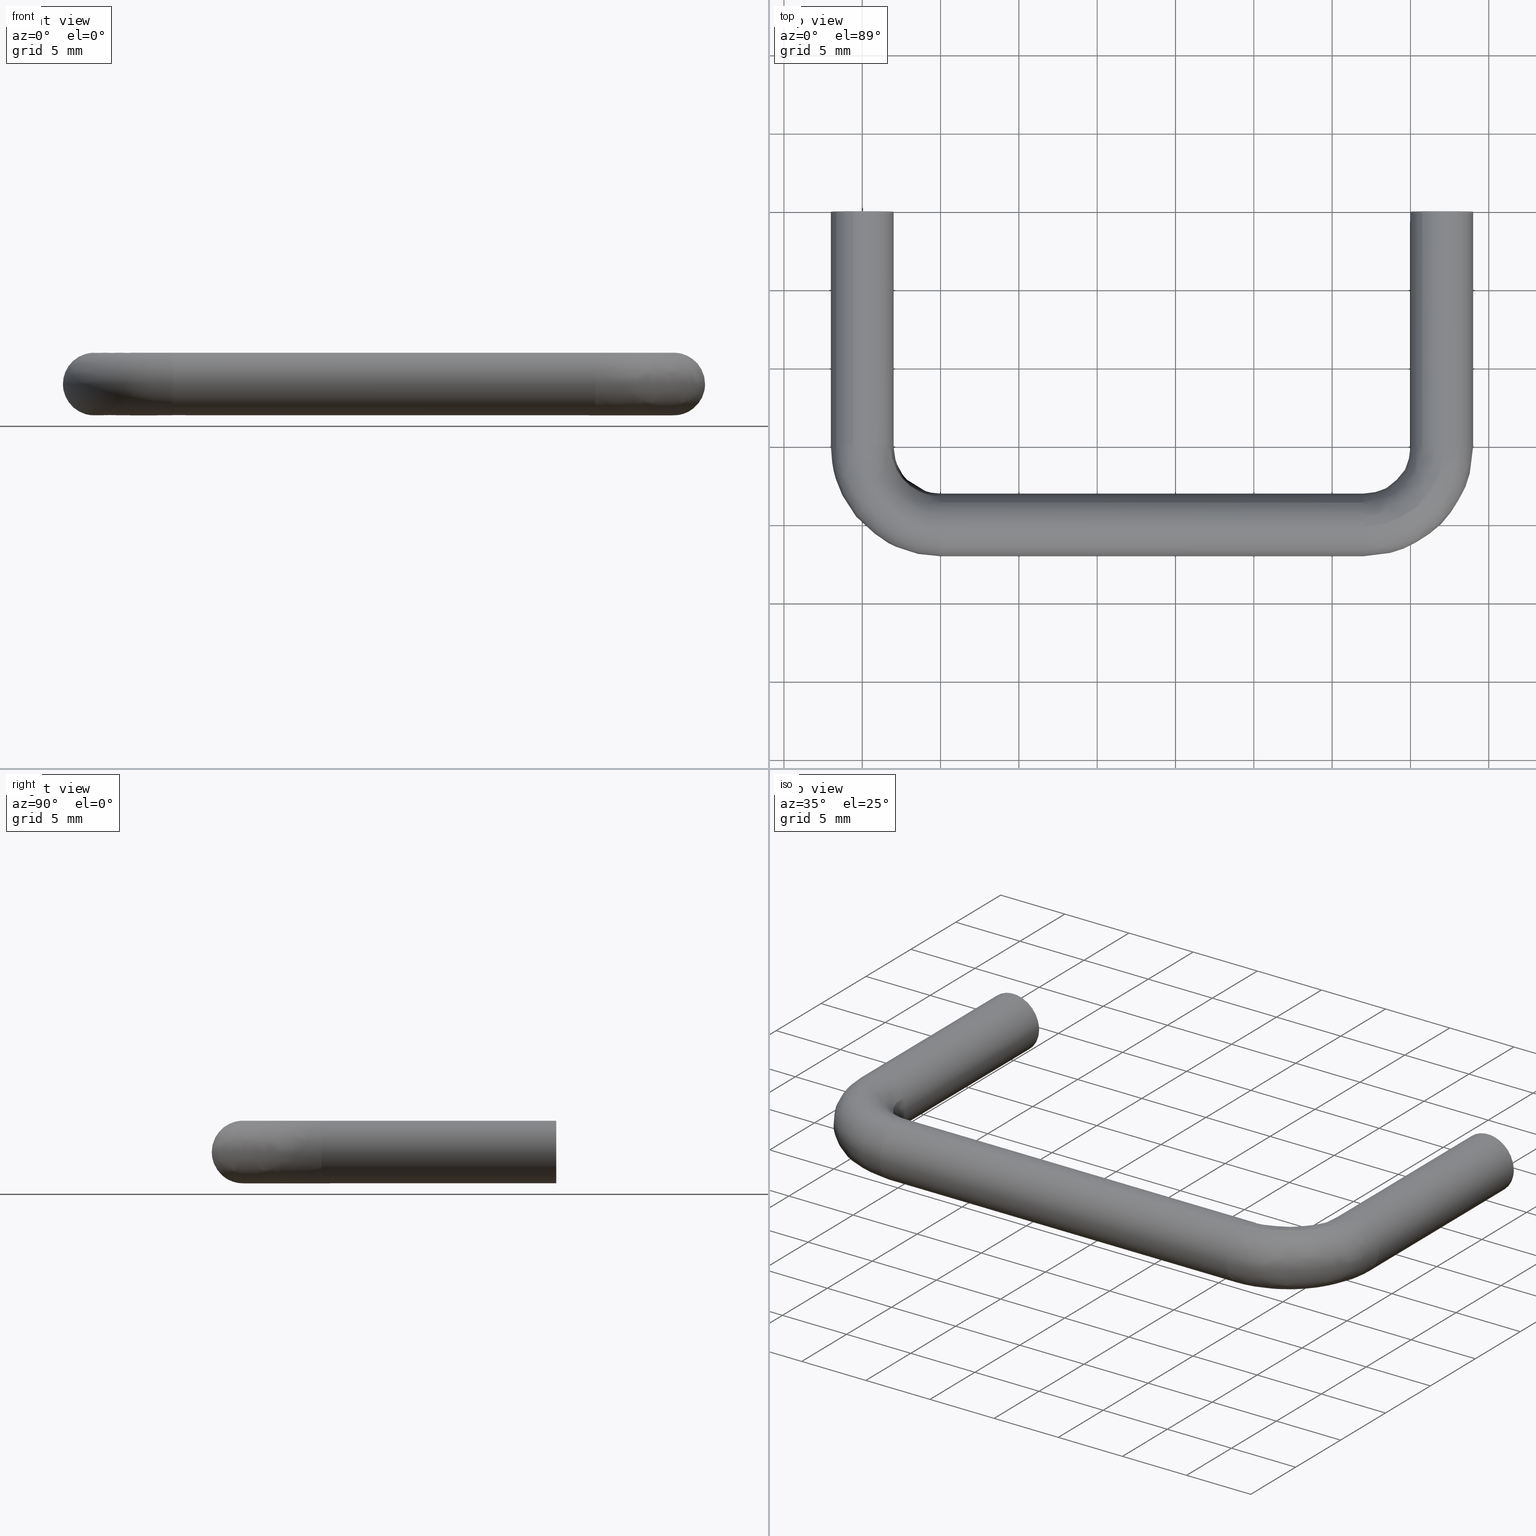
[diagram: canonical four-view strip — front | top / right | iso, engineering-drawing reading convention]
A machine part, canonical four-view strip (front | top / right | iso — engineering-drawing reading convention). The complete STEP part file that produces these views, byte-faithful:
ISO-10303-21;
HEADER;
/****************************************************************
 * Generated by software with PDE/Lib inside                    *
 * PDElib Version 4.4.1-0003, patched  Thursday August 19 11:58 *
 * International Technegroup Inc. (www.iti-oh.com)              *
 ****************************************************************/
FILE_DESCRIPTION((''),'2;1');
FILE_NAME('','2006-10-08T15:00:16',(''),(''),'','CADfix','');
FILE_SCHEMA(('AUTOMOTIVE_DESIGN'));
ENDSEC;
DATA;
#5=APPLICATION_CONTEXT('automotive design');
#6=APPLICATION_PROTOCOL_DEFINITION('Draft International Standard','automotive_design',1998,#5);
#7=PRODUCT_CONTEXT('None',#5,'mechanical');
#8=PRODUCT('pull','pull','None',(#7));
#9=PRODUCT_RELATED_PRODUCT_CATEGORY('part','description',(#8));
#10=PRODUCT_DEFINITION_FORMATION('','None',#8);
#11=PRODUCT_DEFINITION_CONTEXT('part definition',#5,'design');
#12=PRODUCT_DEFINITION('None','None',#10,#11);
#18=(NAMED_UNIT(*)PLANE_ANGLE_UNIT()SI_UNIT($,.RADIAN.));
#19=DIMENSIONAL_EXPONENTS(0.0,0.0,0.0,0.0,0.0,0.0,0.0);
#20=PLANE_ANGLE_MEASURE_WITH_UNIT(PLANE_ANGLE_MEASURE(0.017453292500000),#18);
#24=(CONVERSION_BASED_UNIT('DEGREE',#20)NAMED_UNIT(#19)PLANE_ANGLE_UNIT());
#28=(NAMED_UNIT(*)SI_UNIT($,.STERADIAN.)SOLID_ANGLE_UNIT());
#32=(LENGTH_UNIT()NAMED_UNIT(*)SI_UNIT(.MILLI.,.METRE.));
#34=UNCERTAINTY_MEASURE_WITH_UNIT(LENGTH_MEASURE(0.001000000000000),#32,'DISTANCE_ACCURACY_VALUE','');
#36=(GEOMETRIC_REPRESENTATION_CONTEXT(3)GLOBAL_UNCERTAINTY_ASSIGNED_CONTEXT((#34))GLOBAL_UNIT_ASSIGNED_CONTEXT((#24,#28,#32))REPRESENTATION_CONTEXT('None','None'));
#37=AXIS2_PLACEMENT_3D('',#38,#39,#40);
#38=CARTESIAN_POINT('',(0.0,0.0,0.0));
#39=DIRECTION('',(0.0,0.0,1.0));
#40=DIRECTION('',(1.0,0.0,0.0));
#41=ADVANCED_BREP_SHAPE_REPRESENTATION('',(#37,#1387),#36);
#42=PRODUCT_DEFINITION_SHAPE('','',#12);
#43=SHAPE_DEFINITION_REPRESENTATION(#42,#41);
#44=CARTESIAN_POINT('',(-1.295992533853066,-10.250000000000000,0.101996824446199));
#45=CARTESIAN_POINT('',(-1.193995709406867,-10.250000000000002,1.397989358299265));
#46=CARTESIAN_POINT('',(0.101996824446199,-10.250000000000000,1.295992533853066));
#47=CARTESIAN_POINT('',(1.397989358299265,-10.250000000000002,1.193995709406867));
#48=CARTESIAN_POINT('',(1.295992533853066,-10.250000000000000,-0.101996824446199));
#49=CARTESIAN_POINT('',(-1.295992533853066,0.256250000000001,0.101996824446199));
#50=CARTESIAN_POINT('',(-1.193995709406867,0.256250000000001,1.397989358299265));
#51=CARTESIAN_POINT('',(0.101996824446199,0.256250000000001,1.295992533853066));
#52=CARTESIAN_POINT('',(1.397989358299265,0.256250000000001,1.193995709406867));
#53=CARTESIAN_POINT('',(1.295992533853066,0.256250000000001,-0.101996824446199));
#61=(BOUNDED_SURFACE()B_SPLINE_SURFACE(2,1,((#44,#49),(#45,#50),(#46,#51),(#47,#52),(#48,#53)),.UNSPECIFIED.,.F.,.F.,.U.)B_SPLINE_SURFACE_WITH_KNOTS((3,2,3),(2,2),(3.141592653589793,4.712388980384690,6.283185307179586),(0.0,10.506250000000000),.UNSPECIFIED.)GEOMETRIC_REPRESENTATION_ITEM()RATIONAL_B_SPLINE_SURFACE(((1.0,1.0),(0.707106781186548,0.707106781186548),(1.0,1.0),(0.707106781186548,0.707106781186548),(1.0,1.0)))REPRESENTATION_ITEM('')SURFACE());
#62=CARTESIAN_POINT('',(0.0,-10.0,1.300000000000000));
#63=VERTEX_POINT('',#62);
#64=CARTESIAN_POINT('',(-1.295992533852372,-10.0,0.101996824455019));
#65=VERTEX_POINT('',#64);
#66=CARTESIAN_POINT('',(0.0,-10.0,1.300000000000000));
#67=CARTESIAN_POINT('',(-1.201707639139261,-10.0,1.300000000000000));
#68=CARTESIAN_POINT('',(-1.295992533852372,-10.0,0.101996824455019));
#76=(BOUNDED_CURVE()B_SPLINE_CURVE(2,(#66,#67,#68),.UNSPECIFIED.,.F.,.U.)B_SPLINE_CURVE_WITH_KNOTS((3,3),(0.0,0.236331300630434),.UNSPECIFIED.)CURVE()GEOMETRIC_REPRESENTATION_ITEM()RATIONAL_B_SPLINE_CURVE((1.0,0.723120658607931,0.969723356166946))REPRESENTATION_ITEM(''));
#77=EDGE_CURVE('',#63,#65,#76,.T.);
#78=ORIENTED_EDGE('',*,*,#77,.T.);
#79=CARTESIAN_POINT('',(-1.295992533852372,-2.775558E-017,0.101996824455019));
#80=VERTEX_POINT('',#79);
#81=CARTESIAN_POINT('',(-1.295992533852372,-10.0,0.101996824455019));
#82=CARTESIAN_POINT('',(-1.295992533852372,-2.775558E-017,0.101996824455019));
#83=QUASI_UNIFORM_CURVE('',1,(#81,#82),.UNSPECIFIED.,.F.,.U.);
#84=EDGE_CURVE('',#65,#80,#83,.T.);
#85=ORIENTED_EDGE('',*,*,#84,.T.);
#86=CARTESIAN_POINT('',(0.0,0.0,1.300000000000000));
#87=VERTEX_POINT('',#86);
#88=CARTESIAN_POINT('',(0.0,0.0,1.300000000000000));
#89=CARTESIAN_POINT('',(-1.201707639139262,0.0,1.300000000000000));
#90=CARTESIAN_POINT('',(-1.295992533852373,-2.775558E-017,0.101996824455019));
#98=(BOUNDED_CURVE()B_SPLINE_CURVE(2,(#88,#89,#90),.UNSPECIFIED.,.F.,.U.)B_SPLINE_CURVE_WITH_KNOTS((3,3),(0.0,0.236331300630434),.UNSPECIFIED.)CURVE()GEOMETRIC_REPRESENTATION_ITEM()RATIONAL_B_SPLINE_CURVE((1.0,0.723120658607931,0.969723356166946))REPRESENTATION_ITEM(''));
#99=EDGE_CURVE('',#87,#80,#98,.T.);
#100=ORIENTED_EDGE('',*,*,#99,.F.);
#101=CARTESIAN_POINT('',(1.295992533852372,-2.775558E-017,-0.101996824455019));
#102=VERTEX_POINT('',#101);
#103=CARTESIAN_POINT('',(1.295992533852372,-2.775558E-017,-0.101996824455019));
#104=CARTESIAN_POINT('',(1.300000000000001,0.0,-0.051077139118831));
#105=CARTESIAN_POINT('',(1.300000000000000,0.0,0.0));
#106=CARTESIAN_POINT('',(1.300000000000000,0.0,1.300000000000000));
#107=CARTESIAN_POINT('',(0.0,0.0,1.300000000000000));
#115=(BOUNDED_CURVE()B_SPLINE_CURVE(2,(#103,#104,#105,#106,#107),.UNSPECIFIED.,.F.,.U.)B_SPLINE_CURVE_WITH_KNOTS((3,2,3),(0.736331300630434,0.750000000000000,1.0),.UNSPECIFIED.)CURVE()GEOMETRIC_REPRESENTATION_ITEM()RATIONAL_B_SPLINE_CURVE((0.969723356166946,0.983986122578617,1.0,0.707106781186548,1.0))REPRESENTATION_ITEM(''));
#116=EDGE_CURVE('',#102,#87,#115,.T.);
#117=ORIENTED_EDGE('',*,*,#116,.F.);
#118=CARTESIAN_POINT('',(1.295992533852372,-10.0,-0.101996824455019));
#119=VERTEX_POINT('',#118);
#120=CARTESIAN_POINT('',(1.295992533852372,-10.0,-0.101996824455019));
#121=CARTESIAN_POINT('',(1.295992533852372,-2.775558E-017,-0.101996824455019));
#122=QUASI_UNIFORM_CURVE('',1,(#120,#121),.UNSPECIFIED.,.F.,.U.);
#123=EDGE_CURVE('',#119,#102,#122,.T.);
#124=ORIENTED_EDGE('',*,*,#123,.F.);
#125=CARTESIAN_POINT('',(1.295992533852372,-10.0,-0.101996824455019));
#126=CARTESIAN_POINT('',(1.300000000000001,-10.000000000000002,-0.051077139118831));
#127=CARTESIAN_POINT('',(1.300000000000000,-10.0,0.0));
#128=CARTESIAN_POINT('',(1.300000000000000,-10.000000000000002,1.300000000000000));
#129=CARTESIAN_POINT('',(0.0,-10.0,1.300000000000000));
#137=(BOUNDED_CURVE()B_SPLINE_CURVE(2,(#125,#126,#127,#128,#129),.UNSPECIFIED.,.F.,.U.)B_SPLINE_CURVE_WITH_KNOTS((3,2,3),(0.736331300630434,0.750000000000000,1.0),.UNSPECIFIED.)CURVE()GEOMETRIC_REPRESENTATION_ITEM()RATIONAL_B_SPLINE_CURVE((0.969723356166946,0.983986122578617,1.0,0.707106781186548,1.0))REPRESENTATION_ITEM(''));
#138=EDGE_CURVE('',#119,#63,#137,.T.);
#139=ORIENTED_EDGE('',*,*,#138,.T.);
#140=EDGE_LOOP('',(#78,#85,#100,#117,#124,#139));
#141=FACE_OUTER_BOUND('',#140,.T.);
#142=ADVANCED_FACE('',(#141),#61,.F.);
#143=CARTESIAN_POINT('',(1.295992533853066,-10.250000000000000,-0.101996824446199));
#144=CARTESIAN_POINT('',(1.193995709406867,-10.250000000000002,-1.397989358299265));
#145=CARTESIAN_POINT('',(-0.101996824446199,-10.250000000000000,-1.295992533853066));
#146=CARTESIAN_POINT('',(-1.397989358299265,-10.250000000000002,-1.193995709406867));
#147=CARTESIAN_POINT('',(-1.295992533853066,-10.250000000000000,0.101996824446199));
#148=CARTESIAN_POINT('',(1.295992533853066,0.256250000000001,-0.101996824446199));
#149=CARTESIAN_POINT('',(1.193995709406867,0.256250000000001,-1.397989358299265));
#150=CARTESIAN_POINT('',(-0.101996824446199,0.256250000000001,-1.295992533853066));
#151=CARTESIAN_POINT('',(-1.397989358299265,0.256250000000001,-1.193995709406867));
#152=CARTESIAN_POINT('',(-1.295992533853066,0.256250000000001,0.101996824446199));
#160=(BOUNDED_SURFACE()B_SPLINE_SURFACE(2,1,((#143,#148),(#144,#149),(#145,#150),(#146,#151),(#147,#152)),.UNSPECIFIED.,.F.,.F.,.U.)B_SPLINE_SURFACE_WITH_KNOTS((3,2,3),(2,2),(0.0,1.570796326794897,3.141592653589793),(0.0,10.506250000000000),.UNSPECIFIED.)GEOMETRIC_REPRESENTATION_ITEM()RATIONAL_B_SPLINE_SURFACE(((1.0,1.0),(0.707106781186548,0.707106781186548),(1.0,1.0),(0.707106781186548,0.707106781186548),(1.0,1.0)))REPRESENTATION_ITEM('')SURFACE());
#161=CARTESIAN_POINT('',(0.0,-10.0,-1.300000000000000));
#162=VERTEX_POINT('',#161);
#163=CARTESIAN_POINT('',(-1.295992533852372,-10.0,0.101996824455019));
#164=CARTESIAN_POINT('',(-1.300000000000000,-10.0,0.051077139118832));
#165=CARTESIAN_POINT('',(-1.300000000000000,-10.0,0.0));
#166=CARTESIAN_POINT('',(-1.300000000000000,-10.000000000000002,-1.300000000000000));
#167=CARTESIAN_POINT('',(0.0,-10.0,-1.300000000000000));
#175=(BOUNDED_CURVE()B_SPLINE_CURVE(2,(#163,#164,#165,#166,#167),.UNSPECIFIED.,.F.,.U.)B_SPLINE_CURVE_WITH_KNOTS((3,2,3),(0.236331300630434,0.250000000000000,0.500000000000000),.UNSPECIFIED.)CURVE()GEOMETRIC_REPRESENTATION_ITEM()RATIONAL_B_SPLINE_CURVE((0.969723356166946,0.983986122578617,1.0,0.707106781186548,1.0))REPRESENTATION_ITEM(''));
#176=EDGE_CURVE('',#65,#162,#175,.T.);
#177=ORIENTED_EDGE('',*,*,#176,.T.);
#178=CARTESIAN_POINT('',(0.0,-10.0,-1.300000000000000));
#179=CARTESIAN_POINT('',(1.201707639139269,-10.0,-1.300000000000000));
#180=CARTESIAN_POINT('',(1.295992533852372,-10.0,-0.101996824455019));
#188=(BOUNDED_CURVE()B_SPLINE_CURVE(2,(#178,#179,#180),.UNSPECIFIED.,.F.,.U.)B_SPLINE_CURVE_WITH_KNOTS((3,3),(0.500000000000000,0.736331300630435),.UNSPECIFIED.)CURVE()GEOMETRIC_REPRESENTATION_ITEM()RATIONAL_B_SPLINE_CURVE((1.0,0.723120658607929,0.969723356166948))REPRESENTATION_ITEM(''));
#189=EDGE_CURVE('',#162,#119,#188,.T.);
#190=ORIENTED_EDGE('',*,*,#189,.T.);
#191=ORIENTED_EDGE('',*,*,#123,.T.);
#192=CARTESIAN_POINT('',(0.0,0.0,-1.300000000000000));
#193=VERTEX_POINT('',#192);
#194=CARTESIAN_POINT('',(0.0,0.0,-1.300000000000000));
#195=CARTESIAN_POINT('',(1.201707639139269,0.0,-1.300000000000000));
#196=CARTESIAN_POINT('',(1.295992533852372,-2.775558E-017,-0.101996824455019));
#204=(BOUNDED_CURVE()B_SPLINE_CURVE(2,(#194,#195,#196),.UNSPECIFIED.,.F.,.U.)B_SPLINE_CURVE_WITH_KNOTS((3,3),(0.500000000000000,0.736331300630435),.UNSPECIFIED.)CURVE()GEOMETRIC_REPRESENTATION_ITEM()RATIONAL_B_SPLINE_CURVE((1.0,0.723120658607929,0.969723356166948))REPRESENTATION_ITEM(''));
#205=EDGE_CURVE('',#193,#102,#204,.T.);
#206=ORIENTED_EDGE('',*,*,#205,.F.);
#207=CARTESIAN_POINT('',(-1.295992533852372,-2.775558E-017,0.101996824455019));
#208=CARTESIAN_POINT('',(-1.300000000000000,0.0,0.051077139118831));
#209=CARTESIAN_POINT('',(-1.300000000000000,0.0,0.0));
#210=CARTESIAN_POINT('',(-1.300000000000000,0.0,-1.300000000000000));
#211=CARTESIAN_POINT('',(0.0,0.0,-1.300000000000000));
#219=(BOUNDED_CURVE()B_SPLINE_CURVE(2,(#207,#208,#209,#210,#211),.UNSPECIFIED.,.F.,.U.)B_SPLINE_CURVE_WITH_KNOTS((3,2,3),(0.236331300630434,0.250000000000000,0.500000000000000),.UNSPECIFIED.)CURVE()GEOMETRIC_REPRESENTATION_ITEM()RATIONAL_B_SPLINE_CURVE((0.969723356166946,0.983986122578617,1.0,0.707106781186548,1.0))REPRESENTATION_ITEM(''));
#220=EDGE_CURVE('',#80,#193,#219,.T.);
#221=ORIENTED_EDGE('',*,*,#220,.F.);
#222=ORIENTED_EDGE('',*,*,#84,.F.);
#223=EDGE_LOOP('',(#177,#190,#191,#206,#221,#222));
#224=FACE_OUTER_BOUND('',#223,.T.);
#225=ADVANCED_FACE('',(#224),#160,.F.);
#226=CARTESIAN_POINT('',(35.704007466146933,-10.250000000000000,0.101996824446199));
#227=CARTESIAN_POINT('',(35.806004290593130,-10.250000000000002,1.397989358299265));
#228=CARTESIAN_POINT('',(37.101996824446204,-10.250000000000000,1.295992533853066));
#229=CARTESIAN_POINT('',(38.397989358299263,-10.250000000000002,1.193995709406867));
#230=CARTESIAN_POINT('',(38.295992533853067,-10.250000000000000,-0.101996824446199));
#231=CARTESIAN_POINT('',(35.704007466146933,0.256250000000001,0.101996824446199));
#232=CARTESIAN_POINT('',(35.806004290593130,0.256250000000001,1.397989358299265));
#233=CARTESIAN_POINT('',(37.101996824446204,0.256250000000001,1.295992533853066));
#234=CARTESIAN_POINT('',(38.397989358299263,0.256250000000001,1.193995709406867));
#235=CARTESIAN_POINT('',(38.295992533853067,0.256250000000001,-0.101996824446199));
#243=(BOUNDED_SURFACE()B_SPLINE_SURFACE(2,1,((#226,#231),(#227,#232),(#228,#233),(#229,#234),(#230,#235)),.UNSPECIFIED.,.F.,.F.,.U.)B_SPLINE_SURFACE_WITH_KNOTS((3,2,3),(2,2),(3.141592653589793,4.712388980384690,6.283185307179586),(0.0,10.506250000000000),.UNSPECIFIED.)GEOMETRIC_REPRESENTATION_ITEM()RATIONAL_B_SPLINE_SURFACE(((1.0,1.0),(0.707106781186548,0.707106781186548),(1.0,1.0),(0.707106781186548,0.707106781186548),(1.0,1.0)))REPRESENTATION_ITEM('')SURFACE());
#244=CARTESIAN_POINT('',(37.0,-10.0,1.300000000000000));
#245=VERTEX_POINT('',#244);
#246=CARTESIAN_POINT('',(35.704007466147630,-10.0,0.101996824455019));
#247=VERTEX_POINT('',#246);
#248=CARTESIAN_POINT('',(37.0,-10.0,1.300000000000000));
#249=CARTESIAN_POINT('',(35.798292360860728,-10.0,1.300000000000000));
#250=CARTESIAN_POINT('',(35.704007466147630,-10.0,0.101996824455019));
#258=(BOUNDED_CURVE()B_SPLINE_CURVE(2,(#248,#249,#250),.UNSPECIFIED.,.F.,.U.)B_SPLINE_CURVE_WITH_KNOTS((3,3),(0.0,0.236331300630434),.UNSPECIFIED.)CURVE()GEOMETRIC_REPRESENTATION_ITEM()RATIONAL_B_SPLINE_CURVE((1.0,0.723120658607931,0.969723356166946))REPRESENTATION_ITEM(''));
#259=EDGE_CURVE('',#245,#247,#258,.T.);
#260=ORIENTED_EDGE('',*,*,#259,.T.);
#261=CARTESIAN_POINT('',(35.704007466147630,-2.775558E-017,0.101996824455019));
#262=VERTEX_POINT('',#261);
#263=CARTESIAN_POINT('',(35.704007466147630,-10.0,0.101996824455019));
#264=CARTESIAN_POINT('',(35.704007466147630,-2.775558E-017,0.101996824455019));
#265=QUASI_UNIFORM_CURVE('',1,(#263,#264),.UNSPECIFIED.,.F.,.U.);
#266=EDGE_CURVE('',#247,#262,#265,.T.);
#267=ORIENTED_EDGE('',*,*,#266,.T.);
#268=CARTESIAN_POINT('',(37.0,0.0,1.300000000000000));
#269=VERTEX_POINT('',#268);
#270=CARTESIAN_POINT('',(37.0,0.0,1.300000000000000));
#271=CARTESIAN_POINT('',(35.798292360860728,0.0,1.300000000000000));
#272=CARTESIAN_POINT('',(35.704007466147630,-2.775558E-017,0.101996824455019));
#280=(BOUNDED_CURVE()B_SPLINE_CURVE(2,(#270,#271,#272),.UNSPECIFIED.,.F.,.U.)B_SPLINE_CURVE_WITH_KNOTS((3,3),(0.0,0.236331300630434),.UNSPECIFIED.)CURVE()GEOMETRIC_REPRESENTATION_ITEM()RATIONAL_B_SPLINE_CURVE((1.0,0.723120658607931,0.969723356166946))REPRESENTATION_ITEM(''));
#281=EDGE_CURVE('',#269,#262,#280,.T.);
#282=ORIENTED_EDGE('',*,*,#281,.F.);
#283=CARTESIAN_POINT('',(38.295992533852370,-2.775558E-017,-0.101996824455019));
#284=VERTEX_POINT('',#283);
#285=CARTESIAN_POINT('',(38.295992533852370,-2.775558E-017,-0.101996824455019));
#286=CARTESIAN_POINT('',(38.299999999999997,0.0,-0.051077139118831));
#287=CARTESIAN_POINT('',(38.299999999999997,0.0,0.0));
#288=CARTESIAN_POINT('',(38.299999999999997,0.0,1.300000000000000));
#289=CARTESIAN_POINT('',(37.0,0.0,1.300000000000000));
#297=(BOUNDED_CURVE()B_SPLINE_CURVE(2,(#285,#286,#287,#288,#289),.UNSPECIFIED.,.F.,.U.)B_SPLINE_CURVE_WITH_KNOTS((3,2,3),(0.736331300630434,0.750000000000000,1.0),.UNSPECIFIED.)CURVE()GEOMETRIC_REPRESENTATION_ITEM()RATIONAL_B_SPLINE_CURVE((0.969723356166946,0.983986122578617,1.0,0.707106781186548,1.0))REPRESENTATION_ITEM(''));
#298=EDGE_CURVE('',#284,#269,#297,.T.);
#299=ORIENTED_EDGE('',*,*,#298,.F.);
#300=CARTESIAN_POINT('',(38.295992533852370,-10.0,-0.101996824455018));
#301=VERTEX_POINT('',#300);
#302=CARTESIAN_POINT('',(38.295992533852370,-10.0,-0.101996824455018));
#303=CARTESIAN_POINT('',(38.295992533852370,-2.775558E-017,-0.101996824455019));
#304=QUASI_UNIFORM_CURVE('',1,(#302,#303),.UNSPECIFIED.,.F.,.U.);
#305=EDGE_CURVE('',#301,#284,#304,.T.);
#306=ORIENTED_EDGE('',*,*,#305,.F.);
#307=CARTESIAN_POINT('',(38.295992533852370,-10.000000000000002,-0.101996824455018));
#308=CARTESIAN_POINT('',(38.299999999999997,-10.0,-0.051077139118831));
#309=CARTESIAN_POINT('',(38.299999999999997,-10.0,0.0));
#310=CARTESIAN_POINT('',(38.299999999999997,-10.000000000000002,1.300000000000000));
#311=CARTESIAN_POINT('',(37.0,-10.0,1.300000000000000));
#319=(BOUNDED_CURVE()B_SPLINE_CURVE(2,(#307,#308,#309,#310,#311),.UNSPECIFIED.,.F.,.U.)B_SPLINE_CURVE_WITH_KNOTS((3,2,3),(0.736331300630434,0.750000000000000,1.0),.UNSPECIFIED.)CURVE()GEOMETRIC_REPRESENTATION_ITEM()RATIONAL_B_SPLINE_CURVE((0.969723356166946,0.983986122578617,1.0,0.707106781186548,1.0))REPRESENTATION_ITEM(''));
#320=EDGE_CURVE('',#301,#245,#319,.T.);
#321=ORIENTED_EDGE('',*,*,#320,.T.);
#322=EDGE_LOOP('',(#260,#267,#282,#299,#306,#321));
#323=FACE_OUTER_BOUND('',#322,.T.);
#324=ADVANCED_FACE('',(#323),#243,.F.);
#325=CARTESIAN_POINT('',(38.295992533853067,-10.250000000000000,-0.101996824446199));
#326=CARTESIAN_POINT('',(38.193995709406870,-10.250000000000002,-1.397989358299265));
#327=CARTESIAN_POINT('',(36.898003175553796,-10.250000000000000,-1.295992533853066));
#328=CARTESIAN_POINT('',(35.602010641700737,-10.250000000000002,-1.193995709406867));
#329=CARTESIAN_POINT('',(35.704007466146933,-10.250000000000000,0.101996824446199));
#330=CARTESIAN_POINT('',(38.295992533853067,0.256250000000001,-0.101996824446199));
#331=CARTESIAN_POINT('',(38.193995709406870,0.256250000000001,-1.397989358299265));
#332=CARTESIAN_POINT('',(36.898003175553796,0.256250000000001,-1.295992533853066));
#333=CARTESIAN_POINT('',(35.602010641700737,0.256250000000001,-1.193995709406867));
#334=CARTESIAN_POINT('',(35.704007466146933,0.256250000000001,0.101996824446199));
#342=(BOUNDED_SURFACE()B_SPLINE_SURFACE(2,1,((#325,#330),(#326,#331),(#327,#332),(#328,#333),(#329,#334)),.UNSPECIFIED.,.F.,.F.,.U.)B_SPLINE_SURFACE_WITH_KNOTS((3,2,3),(2,2),(0.0,1.570796326794897,3.141592653589793),(0.0,10.506250000000000),.UNSPECIFIED.)GEOMETRIC_REPRESENTATION_ITEM()RATIONAL_B_SPLINE_SURFACE(((1.0,1.0),(0.707106781186548,0.707106781186548),(1.0,1.0),(0.707106781186548,0.707106781186548),(1.0,1.0)))REPRESENTATION_ITEM('')SURFACE());
#343=CARTESIAN_POINT('',(37.0,-10.0,-1.300000000000000));
#344=VERTEX_POINT('',#343);
#345=CARTESIAN_POINT('',(35.704007466147630,-10.0,0.101996824455019));
#346=CARTESIAN_POINT('',(35.699999999999996,-10.000000000000002,0.051077139118831));
#347=CARTESIAN_POINT('',(35.700000000000003,-10.0,0.0));
#348=CARTESIAN_POINT('',(35.700000000000003,-10.000000000000002,-1.300000000000000));
#349=CARTESIAN_POINT('',(37.0,-10.0,-1.300000000000000));
#357=(BOUNDED_CURVE()B_SPLINE_CURVE(2,(#345,#346,#347,#348,#349),.UNSPECIFIED.,.F.,.U.)B_SPLINE_CURVE_WITH_KNOTS((3,2,3),(0.236331300630434,0.250000000000000,0.500000000000000),.UNSPECIFIED.)CURVE()GEOMETRIC_REPRESENTATION_ITEM()RATIONAL_B_SPLINE_CURVE((0.969723356166946,0.983986122578617,1.0,0.707106781186548,1.0))REPRESENTATION_ITEM(''));
#358=EDGE_CURVE('',#247,#344,#357,.T.);
#359=ORIENTED_EDGE('',*,*,#358,.T.);
#360=CARTESIAN_POINT('',(37.0,-10.0,-1.300000000000000));
#361=CARTESIAN_POINT('',(38.201707639139272,-10.0,-1.300000000000000));
#362=CARTESIAN_POINT('',(38.295992533852377,-10.0,-0.101996824455018));
#370=(BOUNDED_CURVE()B_SPLINE_CURVE(2,(#360,#361,#362),.UNSPECIFIED.,.F.,.U.)B_SPLINE_CURVE_WITH_KNOTS((3,3),(0.500000000000000,0.736331300630435),.UNSPECIFIED.)CURVE()GEOMETRIC_REPRESENTATION_ITEM()RATIONAL_B_SPLINE_CURVE((1.0,0.723120658607929,0.969723356166948))REPRESENTATION_ITEM(''));
#371=EDGE_CURVE('',#344,#301,#370,.T.);
#372=ORIENTED_EDGE('',*,*,#371,.T.);
#373=ORIENTED_EDGE('',*,*,#305,.T.);
#374=CARTESIAN_POINT('',(37.0,0.0,-1.300000000000000));
#375=VERTEX_POINT('',#374);
#376=CARTESIAN_POINT('',(37.0,0.0,-1.300000000000000));
#377=CARTESIAN_POINT('',(38.201707639139272,0.0,-1.300000000000000));
#378=CARTESIAN_POINT('',(38.295992533852377,-2.775558E-017,-0.101996824455019));
#386=(BOUNDED_CURVE()B_SPLINE_CURVE(2,(#376,#377,#378),.UNSPECIFIED.,.F.,.U.)B_SPLINE_CURVE_WITH_KNOTS((3,3),(0.500000000000000,0.736331300630435),.UNSPECIFIED.)CURVE()GEOMETRIC_REPRESENTATION_ITEM()RATIONAL_B_SPLINE_CURVE((1.0,0.723120658607929,0.969723356166948))REPRESENTATION_ITEM(''));
#387=EDGE_CURVE('',#375,#284,#386,.T.);
#388=ORIENTED_EDGE('',*,*,#387,.F.);
#389=CARTESIAN_POINT('',(35.704007466147630,-2.775558E-017,0.101996824455019));
#390=CARTESIAN_POINT('',(35.700000000000010,0.0,0.051077139118831));
#391=CARTESIAN_POINT('',(35.700000000000003,0.0,0.0));
#392=CARTESIAN_POINT('',(35.700000000000003,0.0,-1.300000000000000));
#393=CARTESIAN_POINT('',(37.0,0.0,-1.300000000000000));
#401=(BOUNDED_CURVE()B_SPLINE_CURVE(2,(#389,#390,#391,#392,#393),.UNSPECIFIED.,.F.,.U.)B_SPLINE_CURVE_WITH_KNOTS((3,2,3),(0.236331300630434,0.250000000000000,0.500000000000000),.UNSPECIFIED.)CURVE()GEOMETRIC_REPRESENTATION_ITEM()RATIONAL_B_SPLINE_CURVE((0.969723356166946,0.983986122578617,1.0,0.707106781186548,1.0))REPRESENTATION_ITEM(''));
#402=EDGE_CURVE('',#262,#375,#401,.T.);
#403=ORIENTED_EDGE('',*,*,#402,.F.);
#404=ORIENTED_EDGE('',*,*,#266,.F.);
#405=EDGE_LOOP('',(#359,#372,#373,#388,#403,#404));
#406=FACE_OUTER_BOUND('',#405,.T.);
#407=ADVANCED_FACE('',(#406),#342,.F.);
#408=CARTESIAN_POINT('',(38.245029273275243,-15.375000000290459,-1.565216313704828));
#409=CARTESIAN_POINT('',(36.679812959570398,-15.375000000290452,-2.810245586980066));
#410=CARTESIAN_POINT('',(35.434783686295170,-15.375000000290459,-1.245029273275238));
#411=CARTESIAN_POINT('',(34.189754413019941,-15.375000000290452,0.320187040429590));
#412=CARTESIAN_POINT('',(35.754970726724757,-15.375000000290459,1.565216313704828));
#413=CARTESIAN_POINT('',(38.245029273275243,0.384375000007267,-1.565216313704828));
#414=CARTESIAN_POINT('',(36.679812959570398,0.384375000007267,-2.810245586980066));
#415=CARTESIAN_POINT('',(35.434783686295170,0.384375000007267,-1.245029273275238));
#416=CARTESIAN_POINT('',(34.189754413019941,0.384375000007267,0.320187040429590));
#417=CARTESIAN_POINT('',(35.754970726724757,0.384375000007267,1.565216313704828));
#425=(BOUNDED_SURFACE()B_SPLINE_SURFACE(2,1,((#408,#413),(#409,#414),(#410,#415),(#411,#416),(#412,#417)),.UNSPECIFIED.,.F.,.F.,.U.)B_SPLINE_SURFACE_WITH_KNOTS((3,2,3),(2,2),(0.0,3.313708498984759,6.627416997969519),(0.0,15.759375000297730),.UNSPECIFIED.)GEOMETRIC_REPRESENTATION_ITEM()RATIONAL_B_SPLINE_SURFACE(((1.0,1.0),(0.707106781186548,0.707106781186548),(1.0,1.0),(0.707106781186548,0.707106781186548),(1.0,1.0)))REPRESENTATION_ITEM('')SURFACE());
#426=CARTESIAN_POINT('',(36.974867920065897,-15.000000000115220,-1.999842088405528));
#427=VERTEX_POINT('',#426);
#428=CARTESIAN_POINT('',(38.245028264184292,-14.999999999999980,-1.565217116370958));
#429=VERTEX_POINT('',#428);
#430=CARTESIAN_POINT('',(36.974867920065904,-15.000000000115216,-1.999842088405529));
#431=CARTESIAN_POINT('',(36.987433463848809,-14.999999999999996,-2.0));
#432=CARTESIAN_POINT('',(37.0,-15.0,-2.0));
#433=CARTESIAN_POINT('',(37.698430543524225,-15.000000000000002,-2.000000000000000));
#434=CARTESIAN_POINT('',(38.245028264184292,-14.999999999999982,-1.565217116370958));
#442=(BOUNDED_CURVE()B_SPLINE_CURVE(2,(#430,#431,#432,#433,#434),.UNSPECIFIED.,.F.,.U.)B_SPLINE_CURVE_WITH_KNOTS((3,2,3),(0.247784295892287,0.250000000000000,0.357863779800497),.UNSPECIFIED.)CURVE()GEOMETRIC_REPRESENTATION_ITEM()RATIONAL_B_SPLINE_CURVE((0.994854295576251,0.997404141167816,1.0,0.873629721363388,0.856305649992272))REPRESENTATION_ITEM(''));
#443=EDGE_CURVE('',#427,#429,#442,.T.);
#444=ORIENTED_EDGE('',*,*,#443,.F.);
#445=CARTESIAN_POINT('',(34.999999999999993,-15.0,0.0));
#446=VERTEX_POINT('',#445);
#447=CARTESIAN_POINT('',(34.999999999999993,-15.0,0.0));
#448=CARTESIAN_POINT('',(35.000000000000007,-14.999999999999996,-1.975023859483976));
#449=CARTESIAN_POINT('',(36.974867920065904,-15.000000000115220,-1.999842088405528));
#457=(BOUNDED_CURVE()B_SPLINE_CURVE(2,(#447,#448,#449),.UNSPECIFIED.,.F.,.U.)B_SPLINE_CURVE_WITH_KNOTS((3,3),(0.0,0.247784295892287),.UNSPECIFIED.)CURVE()GEOMETRIC_REPRESENTATION_ITEM()RATIONAL_B_SPLINE_CURVE((1.0,0.709702640018732,0.994854295576251))REPRESENTATION_ITEM(''));
#458=EDGE_CURVE('',#446,#427,#457,.T.);
#459=ORIENTED_EDGE('',*,*,#458,.F.);
#460=CARTESIAN_POINT('',(35.754971735815722,-14.999999999999980,1.565217116370957));
#461=VERTEX_POINT('',#460);
#462=CARTESIAN_POINT('',(35.754971735815722,-14.999999999999982,1.565217116370958));
#463=CARTESIAN_POINT('',(35.000000000000007,-14.999999999999995,0.964686276324076));
#464=CARTESIAN_POINT('',(34.999999999999993,-15.0,0.0));
#472=(BOUNDED_CURVE()B_SPLINE_CURVE(2,(#462,#463,#464),.UNSPECIFIED.,.F.,.U.)B_SPLINE_CURVE_WITH_KNOTS((3,3),(0.857863779800497,1.0),.UNSPECIFIED.)CURVE()GEOMETRIC_REPRESENTATION_ITEM()RATIONAL_B_SPLINE_CURVE((0.856305649992272,0.833477059823160,1.0))REPRESENTATION_ITEM(''));
#473=EDGE_CURVE('',#461,#446,#472,.T.);
#474=ORIENTED_EDGE('',*,*,#473,.F.);
#475=CARTESIAN_POINT('',(35.754972200187481,4.461709E-015,1.565217485747734));
#476=VERTEX_POINT('',#475);
#477=CARTESIAN_POINT('',(35.754971735815722,-14.999999999999980,1.565217116370957));
#478=CARTESIAN_POINT('',(35.754972200187481,4.461709E-015,1.565217485747734));
#479=QUASI_UNIFORM_CURVE('',1,(#477,#478),.UNSPECIFIED.,.F.,.U.);
#480=EDGE_CURVE('',#461,#476,#479,.T.);
#481=ORIENTED_EDGE('',*,*,#480,.T.);
#482=CARTESIAN_POINT('',(34.999999999999993,5.204170E-015,0.0));
#483=VERTEX_POINT('',#482);
#484=CARTESIAN_POINT('',(35.754972200187481,4.461709E-015,1.565217485747734));
#485=CARTESIAN_POINT('',(35.0,5.204170E-015,0.964686642030370));
#486=CARTESIAN_POINT('',(34.999999999999993,5.204170E-015,0.0));
#494=(BOUNDED_CURVE()B_SPLINE_CURVE(2,(#484,#485,#486),.UNSPECIFIED.,.F.,.U.)B_SPLINE_CURVE_WITH_KNOTS((3,3),(0.857863734890325,1.0),.UNSPECIFIED.)CURVE()GEOMETRIC_REPRESENTATION_ITEM()RATIONAL_B_SPLINE_CURVE((0.856305664418394,0.833477007207620,1.0))REPRESENTATION_ITEM(''));
#495=EDGE_CURVE('',#476,#483,#494,.T.);
#496=ORIENTED_EDGE('',*,*,#495,.T.);
#497=CARTESIAN_POINT('',(38.245027799812519,5.405398E-015,-1.565217485747733));
#498=VERTEX_POINT('',#497);
#499=CARTESIAN_POINT('',(34.999999999999993,5.204170E-015,0.0));
#500=CARTESIAN_POINT('',(34.999999999999993,5.204170E-015,-2.000000000000000));
#501=CARTESIAN_POINT('',(37.0,5.204170E-015,-2.0));
#502=CARTESIAN_POINT('',(37.698430210661726,5.204170E-015,-2.000000000000000));
#503=CARTESIAN_POINT('',(38.245027799812519,5.405398E-015,-1.565217485747733));
#511=(BOUNDED_CURVE()B_SPLINE_CURVE(2,(#499,#500,#501,#502,#503),.UNSPECIFIED.,.F.,.U.)B_SPLINE_CURVE_WITH_KNOTS((3,2,3),(0.0,0.250000000000000,0.357863734890326),.UNSPECIFIED.)CURVE()GEOMETRIC_REPRESENTATION_ITEM()RATIONAL_B_SPLINE_CURVE((1.0,0.707106781186548,1.0,0.873629773978926,0.856305664418394))REPRESENTATION_ITEM(''));
#512=EDGE_CURVE('',#483,#498,#511,.T.);
#513=ORIENTED_EDGE('',*,*,#512,.T.);
#514=CARTESIAN_POINT('',(38.245028264184292,-14.999999999999980,-1.565217116370958));
#515=CARTESIAN_POINT('',(38.245027799812519,5.405398E-015,-1.565217485747733));
#516=QUASI_UNIFORM_CURVE('',1,(#514,#515),.UNSPECIFIED.,.F.,.U.);
#517=EDGE_CURVE('',#429,#498,#516,.T.);
#518=ORIENTED_EDGE('',*,*,#517,.F.);
#519=EDGE_LOOP('',(#444,#459,#474,#481,#496,#513,#518));
#520=FACE_OUTER_BOUND('',#519,.T.);
#521=ADVANCED_FACE('',(#520),#425,.T.);
#522=CARTESIAN_POINT('',(35.754970726724757,-15.375000000290459,1.565216313704828));
#523=CARTESIAN_POINT('',(37.320187040429602,-15.375000000290452,2.810245586980066));
#524=CARTESIAN_POINT('',(38.565216313704830,-15.375000000290459,1.245029273275238));
#525=CARTESIAN_POINT('',(39.810245586980059,-15.375000000290452,-0.320187040429590));
#526=CARTESIAN_POINT('',(38.245029273275243,-15.375000000290459,-1.565216313704828));
#527=CARTESIAN_POINT('',(35.754970726724757,0.384375000007267,1.565216313704828));
#528=CARTESIAN_POINT('',(37.320187040429602,0.384375000007267,2.810245586980066));
#529=CARTESIAN_POINT('',(38.565216313704830,0.384375000007267,1.245029273275238));
#530=CARTESIAN_POINT('',(39.810245586980059,0.384375000007267,-0.320187040429590));
#531=CARTESIAN_POINT('',(38.245029273275243,0.384375000007267,-1.565216313704828));
#539=(BOUNDED_SURFACE()B_SPLINE_SURFACE(2,1,((#522,#527),(#523,#528),(#524,#529),(#525,#530),(#526,#531)),.UNSPECIFIED.,.F.,.F.,.U.)B_SPLINE_SURFACE_WITH_KNOTS((3,2,3),(2,2),(0.0,3.313708498984768,6.627416997969536),(0.0,15.759375000297730),.UNSPECIFIED.)GEOMETRIC_REPRESENTATION_ITEM()RATIONAL_B_SPLINE_SURFACE(((1.0,1.0),(0.707106781186548,0.707106781186548),(1.0,1.0),(0.707106781186548,0.707106781186548),(1.0,1.0)))REPRESENTATION_ITEM('')SURFACE());
#540=CARTESIAN_POINT('',(39.0,-15.0,0.0));
#541=VERTEX_POINT('',#540);
#542=CARTESIAN_POINT('',(38.245028264184285,-14.999999999999980,-1.565217116370957));
#543=CARTESIAN_POINT('',(38.999999999999993,-14.999999999999995,-0.964686276324077));
#544=CARTESIAN_POINT('',(39.0,-15.0,0.0));
#552=(BOUNDED_CURVE()B_SPLINE_CURVE(2,(#542,#543,#544),.UNSPECIFIED.,.F.,.U.)B_SPLINE_CURVE_WITH_KNOTS((3,3),(0.357863779800497,0.500000000000000),.UNSPECIFIED.)CURVE()GEOMETRIC_REPRESENTATION_ITEM()RATIONAL_B_SPLINE_CURVE((0.856305649992272,0.833477059823160,1.0))REPRESENTATION_ITEM(''));
#553=EDGE_CURVE('',#429,#541,#552,.T.);
#554=ORIENTED_EDGE('',*,*,#553,.F.);
#555=ORIENTED_EDGE('',*,*,#517,.T.);
#556=CARTESIAN_POINT('',(39.0,5.204170E-015,0.0));
#557=VERTEX_POINT('',#556);
#558=CARTESIAN_POINT('',(38.245027799812519,5.405398E-015,-1.565217485747733));
#559=CARTESIAN_POINT('',(39.0,5.204170E-015,-0.964686642030361));
#560=CARTESIAN_POINT('',(39.0,5.204170E-015,0.0));
#568=(BOUNDED_CURVE()B_SPLINE_CURVE(2,(#558,#559,#560),.UNSPECIFIED.,.F.,.U.)B_SPLINE_CURVE_WITH_KNOTS((3,3),(0.357863734890326,0.500000000000000),.UNSPECIFIED.)CURVE()GEOMETRIC_REPRESENTATION_ITEM()RATIONAL_B_SPLINE_CURVE((0.856305664418394,0.833477007207621,1.0))REPRESENTATION_ITEM(''));
#569=EDGE_CURVE('',#498,#557,#568,.T.);
#570=ORIENTED_EDGE('',*,*,#569,.T.);
#571=CARTESIAN_POINT('',(39.0,5.204170E-015,0.0));
#572=CARTESIAN_POINT('',(39.000000000000007,5.204170E-015,2.000000000000000));
#573=CARTESIAN_POINT('',(37.0,5.204170E-015,2.0));
#574=CARTESIAN_POINT('',(36.301569789338281,5.204170E-015,2.000000000000000));
#575=CARTESIAN_POINT('',(35.754972200187488,4.461709E-015,1.565217485747734));
#583=(BOUNDED_CURVE()B_SPLINE_CURVE(2,(#571,#572,#573,#574,#575),.UNSPECIFIED.,.F.,.U.)B_SPLINE_CURVE_WITH_KNOTS((3,2,3),(0.500000000000000,0.750000000000000,0.857863734890325),.UNSPECIFIED.)CURVE()GEOMETRIC_REPRESENTATION_ITEM()RATIONAL_B_SPLINE_CURVE((1.0,0.707106781186548,1.0,0.873629773978927,0.856305664418394))REPRESENTATION_ITEM(''));
#584=EDGE_CURVE('',#557,#476,#583,.T.);
#585=ORIENTED_EDGE('',*,*,#584,.T.);
#586=ORIENTED_EDGE('',*,*,#480,.F.);
#587=CARTESIAN_POINT('',(37.139466504186352,-15.000000000283370,1.995131347608482));
#588=VERTEX_POINT('',#587);
#589=CARTESIAN_POINT('',(37.139466504186345,-15.000000000283373,1.995131347608482));
#590=CARTESIAN_POINT('',(37.069818232788677,-14.999999999999996,2.0));
#591=CARTESIAN_POINT('',(37.0,-15.0,2.0));
#592=CARTESIAN_POINT('',(36.301569456475768,-15.000000000000005,2.000000000000000));
#593=CARTESIAN_POINT('',(35.754971735815708,-14.999999999999984,1.565217116370958));
#601=(BOUNDED_CURVE()B_SPLINE_CURVE(2,(#589,#590,#591,#592,#593),.UNSPECIFIED.,.F.,.U.)B_SPLINE_CURVE_WITH_KNOTS((3,2,3),(0.737833686356618,0.750000000000000,0.857863779800497),.UNSPECIFIED.)CURVE()GEOMETRIC_REPRESENTATION_ITEM()RATIONAL_B_SPLINE_CURVE((0.972879876009488,0.985746276943583,1.0,0.873629721363388,0.856305649992272))REPRESENTATION_ITEM(''));
#602=EDGE_CURVE('',#588,#461,#601,.T.);
#603=ORIENTED_EDGE('',*,*,#602,.F.);
#604=CARTESIAN_POINT('',(39.0,-15.0,0.0));
#605=CARTESIAN_POINT('',(39.000000000000007,-15.0,1.865073692592591));
#606=CARTESIAN_POINT('',(37.139466504186345,-15.000000000283368,1.995131347608482));
#614=(BOUNDED_CURVE()B_SPLINE_CURVE(2,(#604,#605,#606),.UNSPECIFIED.,.F.,.U.)B_SPLINE_CURVE_WITH_KNOTS((3,3),(0.500000000000000,0.737833686356619),.UNSPECIFIED.)CURVE()GEOMETRIC_REPRESENTATION_ITEM()RATIONAL_B_SPLINE_CURVE((1.0,0.721360504242963,0.972879876009491))REPRESENTATION_ITEM(''));
#615=EDGE_CURVE('',#541,#588,#614,.T.);
#616=ORIENTED_EDGE('',*,*,#615,.F.);
#617=EDGE_LOOP('',(#554,#555,#570,#585,#586,#603,#616));
#618=FACE_OUTER_BOUND('',#617,.T.);
#619=ADVANCED_FACE('',(#618),#539,.T.);
#620=CARTESIAN_POINT('',(4.324998028318658,-18.591260087566504,1.419666108321545));
#621=CARTESIAN_POINT('',(4.324998028318658,-18.631890321656851,1.459983639379791));
#622=CARTESIAN_POINT('',(4.324998028318658,-18.674759903568528,1.497911441578005));
#623=CARTESIAN_POINT('',(4.324998028318658,-20.172671345146536,2.823151538009478));
#624=CARTESIAN_POINT('',(4.324998028318658,-21.497911441578012,1.325240096431473));
#625=CARTESIAN_POINT('',(4.324998028318658,-22.823151538009469,-0.172671345146532));
#626=CARTESIAN_POINT('',(4.324998028318658,-21.325240096431472,-1.497911441578005));
#627=CARTESIAN_POINT('',(32.691875049609202,-18.591260087566489,1.419666108321545));
#628=CARTESIAN_POINT('',(32.691875049609195,-18.631890321656844,1.459983639379791));
#629=CARTESIAN_POINT('',(32.691875049609202,-18.674759903568528,1.497911441578005));
#630=CARTESIAN_POINT('',(32.691875049609187,-20.172671345146536,2.823151538009478));
#631=CARTESIAN_POINT('',(32.691875049609202,-21.497911441578001,1.325240096431473));
#632=CARTESIAN_POINT('',(32.691875049609187,-22.823151538009469,-0.172671345146532));
#633=CARTESIAN_POINT('',(32.691875049609202,-21.325240096431472,-1.497911441578005));
#641=(BOUNDED_SURFACE()B_SPLINE_SURFACE(2,1,((#620,#627),(#621,#628),(#622,#629),(#623,#630),(#624,#631),(#625,#632),(#626,#633)),.UNSPECIFIED.,.F.,.F.,.U.)B_SPLINE_SURFACE_WITH_KNOTS((3,2,2,3),(2,2),(0.0,0.132548339959391,3.446256838944149,6.759965337928908),(0.0,28.366877021290549),.UNSPECIFIED.)GEOMETRIC_REPRESENTATION_ITEM()RATIONAL_B_SPLINE_SURFACE(((0.977505800795127,0.977505800795127),(0.988284271247462,0.988284271247462),(1.0,1.0),(0.707106781186548,0.707106781186548),(1.0,1.0),(0.707106781186548,0.707106781186548),(1.0,1.0)))REPRESENTATION_ITEM('')SURFACE());
#642=CARTESIAN_POINT('',(32.000000000036209,-20.139466503343179,1.995131347667422));
#643=VERTEX_POINT('',#642);
#644=CARTESIAN_POINT('',(32.0,-18.591260098857589,1.419666119525739));
#645=VERTEX_POINT('',#644);
#646=CARTESIAN_POINT('',(32.000000000036216,-20.139466503343176,1.995131347667422));
#647=CARTESIAN_POINT('',(32.0,-20.069818231942428,2.000000000000000));
#648=CARTESIAN_POINT('',(32.0,-20.0,2.0));
#649=CARTESIAN_POINT('',(32.0,-19.176095071274911,2.000000000000000));
#650=CARTESIAN_POINT('',(31.999999999999993,-18.591260098857589,1.419666119525738));
#658=(BOUNDED_CURVE()B_SPLINE_CURVE(2,(#646,#647,#648,#649,#650),.UNSPECIFIED.,.F.,.U.)B_SPLINE_CURVE_WITH_KNOTS((3,2,3),(0.737833686501982,0.750000000000000,0.874417114703642),.UNSPECIFIED.)CURVE()GEOMETRIC_REPRESENTATION_ITEM()RATIONAL_B_SPLINE_CURVE((0.972879876316946,0.985746277113888,1.0,0.854236283195871,0.853556574977730))REPRESENTATION_ITEM(''));
#659=EDGE_CURVE('',#643,#645,#658,.T.);
#660=ORIENTED_EDGE('',*,*,#659,.T.);
#661=CARTESIAN_POINT('',(5.000000000019877,-18.591260119800999,1.419666140301064));
#662=VERTEX_POINT('',#661);
#663=CARTESIAN_POINT('',(5.000000000019877,-18.591260119800999,1.419666140301064));
#664=CARTESIAN_POINT('',(32.0,-18.591260098857589,1.419666119525739));
#665=QUASI_UNIFORM_CURVE('',1,(#663,#664),.UNSPECIFIED.,.F.,.U.);
#666=EDGE_CURVE('',#662,#645,#665,.T.);
#667=ORIENTED_EDGE('',*,*,#666,.F.);
#668=CARTESIAN_POINT('',(5.0,-22.0,0.0));
#669=VERTEX_POINT('',#668);
#670=CARTESIAN_POINT('',(5.0,-22.0,0.0));
#671=CARTESIAN_POINT('',(5.000000000000001,-22.000000000000007,2.000000000000000));
#672=CARTESIAN_POINT('',(5.0,-20.0,2.0));
#673=CARTESIAN_POINT('',(5.0,-19.176095105796154,2.000000000000000));
#674=CARTESIAN_POINT('',(5.000000000019877,-18.591260119801010,1.419666140301064));
#682=(BOUNDED_CURVE()B_SPLINE_CURVE(2,(#670,#671,#672,#673,#674),.UNSPECIFIED.,.F.,.U.)B_SPLINE_CURVE_WITH_KNOTS((3,2,3),(0.500000000000000,0.750000000000000,0.874417110250491),.UNSPECIFIED.)CURVE()GEOMETRIC_REPRESENTATION_ITEM()RATIONAL_B_SPLINE_CURVE((1.0,0.707106781186548,1.0,0.854236288413062,0.853556575026387))REPRESENTATION_ITEM(''));
#683=EDGE_CURVE('',#669,#662,#682,.T.);
#684=ORIENTED_EDGE('',*,*,#683,.F.);
#685=CARTESIAN_POINT('',(4.999999182295871,-21.325239809866911,-1.497911695108569));
#686=VERTEX_POINT('',#685);
#687=CARTESIAN_POINT('',(4.999999182295872,-21.325239809866911,-1.497911695108569));
#688=CARTESIAN_POINT('',(4.999999703351359,-22.000000000000114,-0.900934767641625));
#689=CARTESIAN_POINT('',(5.0,-22.0,0.0));
#697=(BOUNDED_CURVE()B_SPLINE_CURVE(2,(#687,#688,#689),.UNSPECIFIED.,.F.,.U.)B_SPLINE_CURVE_WITH_KNOTS((3,3),(0.365779830272935,0.500000000000000),.UNSPECIFIED.)CURVE()GEOMETRIC_REPRESENTATION_ITEM()RATIONAL_B_SPLINE_CURVE((0.854350168212415,0.842751289835808,1.0))REPRESENTATION_ITEM(''));
#698=EDGE_CURVE('',#686,#669,#697,.T.);
#699=ORIENTED_EDGE('',*,*,#698,.F.);
#700=CARTESIAN_POINT('',(32.0,-21.325239806286259,-1.497911698276708));
#701=VERTEX_POINT('',#700);
#702=CARTESIAN_POINT('',(4.999999182295871,-21.325239809866911,-1.497911695108569));
#703=CARTESIAN_POINT('',(32.0,-21.325239806286259,-1.497911698276708));
#704=QUASI_UNIFORM_CURVE('',1,(#702,#703),.UNSPECIFIED.,.F.,.U.);
#705=EDGE_CURVE('',#686,#701,#704,.T.);
#706=ORIENTED_EDGE('',*,*,#705,.T.);
#707=CARTESIAN_POINT('',(32.0,-22.0,0.0));
#708=VERTEX_POINT('',#707);
#709=CARTESIAN_POINT('',(31.999999999999996,-21.325239806286262,-1.497911698276709));
#710=CARTESIAN_POINT('',(32.0,-21.999999999999996,-0.900934773392652));
#711=CARTESIAN_POINT('',(32.0,-22.0,0.0));
#719=(BOUNDED_CURVE()B_SPLINE_CURVE(2,(#709,#710,#711),.UNSPECIFIED.,.F.,.U.)B_SPLINE_CURVE_WITH_KNOTS((3,3),(0.365779829550916,0.500000000000000),.UNSPECIFIED.)CURVE()GEOMETRIC_REPRESENTATION_ITEM()RATIONAL_B_SPLINE_CURVE((0.854350168337204,0.842751288989911,1.0))REPRESENTATION_ITEM(''));
#720=EDGE_CURVE('',#701,#708,#719,.T.);
#721=ORIENTED_EDGE('',*,*,#720,.T.);
#722=CARTESIAN_POINT('',(32.0,-22.0,0.0));
#723=CARTESIAN_POINT('',(32.0,-22.0,1.865073694172844));
#724=CARTESIAN_POINT('',(32.000000000036216,-20.139466503343183,1.995131347667422));
#732=(BOUNDED_CURVE()B_SPLINE_CURVE(2,(#722,#723,#724),.UNSPECIFIED.,.F.,.U.)B_SPLINE_CURVE_WITH_KNOTS((3,3),(0.500000000000000,0.737833686501983),.UNSPECIFIED.)CURVE()GEOMETRIC_REPRESENTATION_ITEM()RATIONAL_B_SPLINE_CURVE((1.0,0.721360504072659,0.972879876316947))REPRESENTATION_ITEM(''));
#733=EDGE_CURVE('',#708,#643,#732,.T.);
#734=ORIENTED_EDGE('',*,*,#733,.T.);
#735=EDGE_LOOP('',(#660,#667,#684,#699,#706,#721,#734));
#736=FACE_OUTER_BOUND('',#735,.T.);
#737=ADVANCED_FACE('',(#736),#641,.T.);
#738=CARTESIAN_POINT('',(4.324998028318658,-21.325240096431472,-1.497911441578005));
#739=CARTESIAN_POINT('',(4.324998028318658,-19.827328654853474,-2.823151538009478));
#740=CARTESIAN_POINT('',(4.324998028318658,-18.502088558421999,-1.325240096431473));
#741=CARTESIAN_POINT('',(4.324998028318658,-17.250593514662498,0.089317726089447));
#742=CARTESIAN_POINT('',(4.324998028318658,-18.591260087566504,1.419666108321545));
#743=CARTESIAN_POINT('',(32.691875049609202,-21.325240096431472,-1.497911441578005));
#744=CARTESIAN_POINT('',(32.691875049609187,-19.827328654853460,-2.823151538009478));
#745=CARTESIAN_POINT('',(32.691875049609202,-18.502088558421988,-1.325240096431473));
#746=CARTESIAN_POINT('',(32.691875049609187,-17.250593514662498,0.089317726089447));
#747=CARTESIAN_POINT('',(32.691875049609202,-18.591260087566489,1.419666108321545));
#755=(BOUNDED_SURFACE()B_SPLINE_SURFACE(2,1,((#738,#743),(#739,#744),(#740,#745),(#741,#746),(#742,#747)),.UNSPECIFIED.,.F.,.F.,.U.)B_SPLINE_SURFACE_WITH_KNOTS((3,2,3),(2,2),(0.0,3.313708498984765,6.494868658010139),(0.0,28.366877021290549),.UNSPECIFIED.)GEOMETRIC_REPRESENTATION_ITEM()RATIONAL_B_SPLINE_SURFACE(((1.0,1.0),(0.707106781186548,0.707106781186548),(1.0,1.0),(0.718822509939086,0.718822509939086),(0.977505800795127,0.977505800795127)))REPRESENTATION_ITEM('')SURFACE());
#756=CARTESIAN_POINT('',(32.0,-18.0,0.0));
#757=VERTEX_POINT('',#756);
#758=CARTESIAN_POINT('',(31.999999999999993,-18.591260098857589,1.419666119525738));
#759=CARTESIAN_POINT('',(32.0,-18.000000000000007,0.832956562603464));
#760=CARTESIAN_POINT('',(32.0,-18.0,0.0));
#768=(BOUNDED_CURVE()B_SPLINE_CURVE(2,(#758,#759,#760),.UNSPECIFIED.,.F.,.U.)B_SPLINE_CURVE_WITH_KNOTS((3,3),(0.874417114703642,1.0),.UNSPECIFIED.)CURVE()GEOMETRIC_REPRESENTATION_ITEM()RATIONAL_B_SPLINE_CURVE((0.853556574977730,0.852870497990676,1.0))REPRESENTATION_ITEM(''));
#769=EDGE_CURVE('',#645,#757,#768,.T.);
#770=ORIENTED_EDGE('',*,*,#769,.T.);
#771=CARTESIAN_POINT('',(32.000000000309427,-19.974867919650571,-1.999842088400309));
#772=VERTEX_POINT('',#771);
#773=CARTESIAN_POINT('',(32.0,-18.0,0.0));
#774=CARTESIAN_POINT('',(32.000000000000007,-18.0,-1.975023858663560));
#775=CARTESIAN_POINT('',(32.000000000309427,-19.974867919650574,-1.999842088400309));
#783=(BOUNDED_CURVE()B_SPLINE_CURVE(2,(#773,#774,#775),.UNSPECIFIED.,.F.,.U.)B_SPLINE_CURVE_WITH_KNOTS((3,3),(0.0,0.247784295819239),.UNSPECIFIED.)CURVE()GEOMETRIC_REPRESENTATION_ITEM()RATIONAL_B_SPLINE_CURVE((1.0,0.709702640104314,0.994854295408121))REPRESENTATION_ITEM(''));
#784=EDGE_CURVE('',#757,#772,#783,.T.);
#785=ORIENTED_EDGE('',*,*,#784,.T.);
#786=CARTESIAN_POINT('',(32.000000000309427,-19.974867919650567,-1.999842088400309));
#787=CARTESIAN_POINT('',(31.999999999999996,-19.987433463433430,-2.0));
#788=CARTESIAN_POINT('',(32.0,-20.0,-2.0));
#789=CARTESIAN_POINT('',(31.999999999999996,-20.757731774383874,-2.000000000000000));
#790=CARTESIAN_POINT('',(31.999999999999996,-21.325239806286262,-1.497911698276709));
#798=(BOUNDED_CURVE()B_SPLINE_CURVE(2,(#786,#787,#788,#789,#790),.UNSPECIFIED.,.F.,.U.)B_SPLINE_CURVE_WITH_KNOTS((3,2,3),(0.247784295819239,0.250000000000000,0.365779829550916),.UNSPECIFIED.)CURVE()GEOMETRIC_REPRESENTATION_ITEM()RATIONAL_B_SPLINE_CURVE((0.994854295408121,0.997404141082234,1.0,0.864355492196637,0.854350168337204))REPRESENTATION_ITEM(''));
#799=EDGE_CURVE('',#772,#701,#798,.T.);
#800=ORIENTED_EDGE('',*,*,#799,.T.);
#801=ORIENTED_EDGE('',*,*,#705,.F.);
#802=CARTESIAN_POINT('',(4.999998076415995,-19.276704659011020,-1.864629681651536));
#803=VERTEX_POINT('',#802);
#804=CARTESIAN_POINT('',(4.999998076415995,-19.276704659011028,-1.864629681651536));
#805=CARTESIAN_POINT('',(4.999998199665956,-19.625684528366516,-1.999999999998314));
#806=CARTESIAN_POINT('',(4.999998379672770,-20.000000000000590,-1.999999999998482));
#807=CARTESIAN_POINT('',(4.999998744062953,-20.757731779851195,-1.999999999998824));
#808=CARTESIAN_POINT('',(4.999999182295871,-21.325239809866908,-1.497911695108569));
#816=(BOUNDED_CURVE()B_SPLINE_CURVE(2,(#804,#805,#806,#807,#808),.UNSPECIFIED.,.F.,.U.)B_SPLINE_CURVE_WITH_KNOTS((3,2,3),(0.188590419563113,0.250000000000000,0.365779830272935),.UNSPECIFIED.)CURVE()GEOMETRIC_REPRESENTATION_ITEM()RATIONAL_B_SPLINE_CURVE((0.891453693067869,0.928054201279426,1.0,0.864355491350739,0.854350168212415))REPRESENTATION_ITEM(''));
#817=EDGE_CURVE('',#803,#686,#816,.T.);
#818=ORIENTED_EDGE('',*,*,#817,.F.);
#819=CARTESIAN_POINT('',(5.0,-18.0,0.0));
#820=VERTEX_POINT('',#819);
#821=CARTESIAN_POINT('',(5.0,-18.0,0.0));
#822=CARTESIAN_POINT('',(4.999999038207998,-18.000000000000355,-1.369392187168714));
#823=CARTESIAN_POINT('',(4.999998076415995,-19.276704659011028,-1.864629681651536));
#831=(BOUNDED_CURVE()B_SPLINE_CURVE(2,(#821,#822,#823),.UNSPECIFIED.,.F.,.U.)B_SPLINE_CURVE_WITH_KNOTS((3,3),(0.0,0.188590419563113),.UNSPECIFIED.)CURVE()GEOMETRIC_REPRESENTATION_ITEM()RATIONAL_B_SPLINE_CURVE((1.0,0.779052579907122,0.891453693067869))REPRESENTATION_ITEM(''));
#832=EDGE_CURVE('',#820,#803,#831,.T.);
#833=ORIENTED_EDGE('',*,*,#832,.F.);
#834=CARTESIAN_POINT('',(5.000000000040116,-18.179788058653141,0.828751162037366));
#835=VERTEX_POINT('',#834);
#836=CARTESIAN_POINT('',(5.000000000040116,-18.179788058653138,0.828751162037366));
#837=CARTESIAN_POINT('',(5.0,-18.000000000000004,0.433877059606800));
#838=CARTESIAN_POINT('',(5.0,-18.0,0.0));
#846=(BOUNDED_CURVE()B_SPLINE_CURVE(2,(#836,#837,#838),.UNSPECIFIED.,.F.,.U.)B_SPLINE_CURVE_WITH_KNOTS((3,3),(0.929624510033230,1.0),.UNSPECIFIED.)CURVE()GEOMETRIC_REPRESENTATION_ITEM()RATIONAL_B_SPLINE_CURVE((0.881519651443544,0.917549984872236,1.0))REPRESENTATION_ITEM(''));
#847=EDGE_CURVE('',#835,#820,#846,.T.);
#848=ORIENTED_EDGE('',*,*,#847,.F.);
#849=CARTESIAN_POINT('',(5.000000000019877,-18.591260119801010,1.419666140301064));
#850=CARTESIAN_POINT('',(5.000000000028706,-18.331453841666921,1.161859436222239));
#851=CARTESIAN_POINT('',(5.000000000040115,-18.179788058653134,0.828751162037366));
#859=(BOUNDED_CURVE()B_SPLINE_CURVE(2,(#849,#850,#851),.UNSPECIFIED.,.F.,.U.)B_SPLINE_CURVE_WITH_KNOTS((3,3),(0.874417110250492,0.929624510033231),.UNSPECIFIED.)CURVE()GEOMETRIC_REPRESENTATION_ITEM()RATIONAL_B_SPLINE_CURVE((0.853556575026387,0.853254966922805,0.881519651443544))REPRESENTATION_ITEM(''));
#860=EDGE_CURVE('',#662,#835,#859,.T.);
#861=ORIENTED_EDGE('',*,*,#860,.F.);
#862=ORIENTED_EDGE('',*,*,#666,.T.);
#863=EDGE_LOOP('',(#770,#785,#800,#801,#818,#833,#848,#861,#862));
#864=FACE_OUTER_BOUND('',#863,.T.);
#865=ADVANCED_FACE('',(#864),#755,.T.);
#866=CARTESIAN_POINT('',(-1.654334544363574,0.375000000005425,1.123911569174978));
#867=CARTESIAN_POINT('',(-2.186699413562218,0.375000000005425,0.340300458233743));
#868=CARTESIAN_POINT('',(-1.917639469736385,0.375000000005425,-0.568030689407845));
#869=CARTESIAN_POINT('',(-1.349608780328540,0.375000000005425,-2.485670159144230));
#870=CARTESIAN_POINT('',(0.568030689407845,0.375000000005425,-1.917639469736385));
#871=CARTESIAN_POINT('',(2.485670159144230,0.375000000005426,-1.349608780328540));
#872=CARTESIAN_POINT('',(1.917639469736385,0.375000000005426,0.568030689407845));
#873=CARTESIAN_POINT('',(1.349608780328540,0.375000000005425,2.485670159144230));
#874=CARTESIAN_POINT('',(-0.568030689407845,0.375000000005425,1.917639469736385));
#875=CARTESIAN_POINT('',(-1.654334544363573,-15.384375000222555,1.123911569174978));
#876=CARTESIAN_POINT('',(-2.186699413562216,-15.384375000222546,0.340300458233743));
#877=CARTESIAN_POINT('',(-1.917639469736383,-15.384375000222549,-0.568030689407845));
#878=CARTESIAN_POINT('',(-1.349608780328538,-15.384375000222549,-2.485670159144230));
#879=CARTESIAN_POINT('',(0.568030689407847,-15.384375000222549,-1.917639469736385));
#880=CARTESIAN_POINT('',(2.485670159144233,-15.384375000222549,-1.349608780328540));
#881=CARTESIAN_POINT('',(1.917639469736387,-15.384375000222549,0.568030689407845));
#882=CARTESIAN_POINT('',(1.349608780328542,-15.384375000222549,2.485670159144230));
#883=CARTESIAN_POINT('',(-0.568030689407843,-15.384375000222549,1.917639469736385));
#891=(BOUNDED_SURFACE()B_SPLINE_SURFACE(2,1,((#866,#875),(#867,#876),(#868,#877),(#869,#878),(#870,#879),(#871,#880),(#872,#881),(#873,#882),(#874,#883)),.UNSPECIFIED.,.F.,.F.,.U.)B_SPLINE_SURFACE_WITH_KNOTS((3,2,2,2,3),(2,2),(0.0,1.855676759431465,5.169385258416224,8.483093757400983,11.796802256385741),(0.0,15.759375000227980),.UNSPECIFIED.)GEOMETRIC_REPRESENTATION_ITEM()RATIONAL_B_SPLINE_SURFACE(((0.855662221768731,0.855662221768731),(0.835979797464467,0.835979797464467),(1.0,1.0),(0.707106781186548,0.707106781186548),(1.0,1.0),(0.707106781186548,0.707106781186548),(1.0,1.0),(0.707106781186548,0.707106781186548),(1.0,1.0)))REPRESENTATION_ITEM('')SURFACE());
#892=CARTESIAN_POINT('',(-1.999999999999998,-15.0,0.0));
#893=VERTEX_POINT('',#892);
#894=CARTESIAN_POINT('',(-1.654334544362889,-15.0,1.123911569175985));
#895=VERTEX_POINT('',#894);
#896=CARTESIAN_POINT('',(-1.999999999999998,-15.0,0.0));
#897=CARTESIAN_POINT('',(-1.999999999999998,-15.000000000000002,0.615111482286668));
#898=CARTESIAN_POINT('',(-1.654334544362889,-14.999999999999998,1.123911569175985));
#906=(BOUNDED_CURVE()B_SPLINE_CURVE(2,(#896,#897,#898),.UNSPECIFIED.,.F.,.U.)B_SPLINE_CURVE_WITH_KNOTS((3,3),(0.500000000000000,0.596450219094675),.UNSPECIFIED.)CURVE()GEOMETRIC_REPRESENTATION_ITEM()RATIONAL_B_SPLINE_CURVE((1.0,0.887001539496392,0.861192889176255))REPRESENTATION_ITEM(''));
#907=EDGE_CURVE('',#893,#895,#906,.T.);
#908=ORIENTED_EDGE('',*,*,#907,.T.);
#909=CARTESIAN_POINT('',(-1.654334544362891,6.163132E-016,1.123911569175985));
#910=VERTEX_POINT('',#909);
#911=CARTESIAN_POINT('',(-1.654334544362891,6.163132E-016,1.123911569175985));
#912=CARTESIAN_POINT('',(-1.654334544362889,-15.0,1.123911569175985));
#913=QUASI_UNIFORM_CURVE('',1,(#911,#912),.UNSPECIFIED.,.F.,.U.);
#914=EDGE_CURVE('',#910,#895,#913,.T.);
#915=ORIENTED_EDGE('',*,*,#914,.F.);
#916=CARTESIAN_POINT('',(-2.0,0.0,0.0));
#917=VERTEX_POINT('',#916);
#918=CARTESIAN_POINT('',(-2.0,0.0,0.0));
#919=CARTESIAN_POINT('',(-2.000000000000000,0.0,0.615111482286668));
#920=CARTESIAN_POINT('',(-1.654334544362892,6.163132E-016,1.123911569175985));
#928=(BOUNDED_CURVE()B_SPLINE_CURVE(2,(#918,#919,#920),.UNSPECIFIED.,.F.,.U.)B_SPLINE_CURVE_WITH_KNOTS((3,3),(0.500000000000000,0.596450219094675),.UNSPECIFIED.)CURVE()GEOMETRIC_REPRESENTATION_ITEM()RATIONAL_B_SPLINE_CURVE((1.0,0.887001539496392,0.861192889176255))REPRESENTATION_ITEM(''));
#929=EDGE_CURVE('',#917,#910,#928,.T.);
#930=ORIENTED_EDGE('',*,*,#929,.F.);
#931=CARTESIAN_POINT('',(2.0,0.0,0.0));
#932=VERTEX_POINT('',#931);
#933=CARTESIAN_POINT('',(2.0,0.0,0.0));
#934=CARTESIAN_POINT('',(2.000000000000000,0.0,-2.000000000000000));
#935=CARTESIAN_POINT('',(0.0,0.0,-2.0));
#936=CARTESIAN_POINT('',(-2.000000000000000,0.0,-2.000000000000000));
#937=CARTESIAN_POINT('',(-2.0,0.0,0.0));
#945=(BOUNDED_CURVE()B_SPLINE_CURVE(2,(#933,#934,#935,#936,#937),.UNSPECIFIED.,.F.,.U.)B_SPLINE_CURVE_WITH_KNOTS((3,2,3),(0.0,0.250000000000000,0.500000000000000),.UNSPECIFIED.)CURVE()GEOMETRIC_REPRESENTATION_ITEM()RATIONAL_B_SPLINE_CURVE((1.0,0.707106781186548,1.0,0.707106781186548,1.0))REPRESENTATION_ITEM(''));
#946=EDGE_CURVE('',#932,#917,#945,.T.);
#947=ORIENTED_EDGE('',*,*,#946,.F.);
#948=CARTESIAN_POINT('',(-0.568029256808809,-2.775558E-016,1.917639894090389));
#949=VERTEX_POINT('',#948);
#950=CARTESIAN_POINT('',(-0.568029256808809,-2.775558E-016,1.917639894090389));
#951=CARTESIAN_POINT('',(-0.289985436214155,0.0,2.000000000000000));
#952=CARTESIAN_POINT('',(0.0,0.0,2.0));
#953=CARTESIAN_POINT('',(2.000000000000000,0.0,2.000000000000000));
#954=CARTESIAN_POINT('',(2.0,0.0,0.0));
#962=(BOUNDED_CURVE()B_SPLINE_CURVE(2,(#950,#951,#952,#953,#954),.UNSPECIFIED.,.F.,.U.)B_SPLINE_CURVE_WITH_KNOTS((3,2,3),(0.701641637059280,0.750000000000000,1.0),.UNSPECIFIED.)CURVE()GEOMETRIC_REPRESENTATION_ITEM()RATIONAL_B_SPLINE_CURVE((0.908607385770247,0.943344653686973,1.0,0.707106781186548,1.0))REPRESENTATION_ITEM(''));
#963=EDGE_CURVE('',#949,#932,#962,.T.);
#964=ORIENTED_EDGE('',*,*,#963,.F.);
#965=CARTESIAN_POINT('',(-0.568029238874980,-15.0,1.917639899402601));
#966=VERTEX_POINT('',#965);
#967=CARTESIAN_POINT('',(-0.568029256808809,-2.775558E-016,1.917639894090389));
#968=CARTESIAN_POINT('',(-0.568029238874980,-15.0,1.917639899402601));
#969=QUASI_UNIFORM_CURVE('',1,(#967,#968),.UNSPECIFIED.,.F.,.U.);
#970=EDGE_CURVE('',#949,#966,#969,.T.);
#971=ORIENTED_EDGE('',*,*,#970,.T.);
#972=CARTESIAN_POINT('',(1.820211941307585,-15.000000000132131,0.828751162123636));
#973=VERTEX_POINT('',#972);
#974=CARTESIAN_POINT('',(-0.568029238874980,-15.000000000000005,1.917639899402601));
#975=CARTESIAN_POINT('',(-0.289985426665518,-14.999999999999998,2.000000000000000));
#976=CARTESIAN_POINT('',(1.836910E-015,-15.0,2.0));
#977=CARTESIAN_POINT('',(1.286936769503952,-14.999999999999995,2.000000000000000));
#978=CARTESIAN_POINT('',(1.820211941307585,-15.000000000132138,0.828751162123636));
#986=(BOUNDED_CURVE()B_SPLINE_CURVE(2,(#974,#975,#976,#977,#978),.UNSPECIFIED.,.F.,.U.)B_SPLINE_CURVE_WITH_KNOTS((3,2,3),(0.701641638561408,0.750000000000000,0.929624510018458),.UNSPECIFIED.)CURVE()GEOMETRIC_REPRESENTATION_ITEM()RATIONAL_B_SPLINE_CURVE((0.908607387928295,0.943344655446826,1.0,0.789556796331618,0.881519651428418))REPRESENTATION_ITEM(''));
#987=EDGE_CURVE('',#966,#973,#986,.T.);
#988=ORIENTED_EDGE('',*,*,#987,.T.);
#989=CARTESIAN_POINT('',(2.000000000000002,-15.0,0.0));
#990=VERTEX_POINT('',#989);
#991=CARTESIAN_POINT('',(1.820211941307586,-15.000000000132140,0.828751162123636));
#992=CARTESIAN_POINT('',(2.000000000000002,-14.999999999999998,0.433877059706052));
#993=CARTESIAN_POINT('',(2.000000000000002,-15.0,0.0));
#1001=(BOUNDED_CURVE()B_SPLINE_CURVE(2,(#991,#992,#993),.UNSPECIFIED.,.F.,.U.)B_SPLINE_CURVE_WITH_KNOTS((3,3),(0.929624510018459,1.0),.UNSPECIFIED.)CURVE()GEOMETRIC_REPRESENTATION_ITEM()RATIONAL_B_SPLINE_CURVE((0.881519651428418,0.917549984854930,1.0))REPRESENTATION_ITEM(''));
#1002=EDGE_CURVE('',#973,#990,#1001,.T.);
#1003=ORIENTED_EDGE('',*,*,#1002,.T.);
#1004=CARTESIAN_POINT('',(0.723292547146406,-15.000000000216991,-1.864630765390957));
#1005=VERTEX_POINT('',#1004);
#1006=CARTESIAN_POINT('',(2.000000000000002,-15.0,0.0));
#1007=CARTESIAN_POINT('',(2.000000000000002,-15.000000000000007,-1.369394387691899));
#1008=CARTESIAN_POINT('',(0.723292547146406,-15.000000000216989,-1.864630765390957));
#1016=(BOUNDED_CURVE()B_SPLINE_CURVE(2,(#1006,#1007,#1008),.UNSPECIFIED.,.F.,.U.)B_SPLINE_CURVE_WITH_KNOTS((3,3),(0.0,0.188590655656687),.UNSPECIFIED.)CURVE()GEOMETRIC_REPRESENTATION_ITEM()RATIONAL_B_SPLINE_CURVE((1.0,0.779052303306294,0.891453974494995))REPRESENTATION_ITEM(''));
#1017=EDGE_CURVE('',#990,#1005,#1016,.T.);
#1018=ORIENTED_EDGE('',*,*,#1017,.T.);
#1019=CARTESIAN_POINT('',(0.723292547146406,-15.000000000216989,-1.864630765390957));
#1020=CARTESIAN_POINT('',(0.374313920989274,-15.000000000000004,-2.000000000000000));
#1021=CARTESIAN_POINT('',(1.836910E-015,-15.0,-2.0));
#1022=CARTESIAN_POINT('',(-1.999999999999998,-14.999999999999995,-2.000000000000000));
#1023=CARTESIAN_POINT('',(-1.999999999999998,-15.0,0.0));
#1031=(BOUNDED_CURVE()B_SPLINE_CURVE(2,(#1019,#1020,#1021,#1022,#1023),.UNSPECIFIED.,.F.,.U.)B_SPLINE_CURVE_WITH_KNOTS((3,2,3),(0.188590655656687,0.250000000000000,0.500000000000000),.UNSPECIFIED.)CURVE()GEOMETRIC_REPRESENTATION_ITEM()RATIONAL_B_SPLINE_CURVE((0.891453974494995,0.928054477880254,1.0,0.707106781186548,1.0))REPRESENTATION_ITEM(''));
#1032=EDGE_CURVE('',#1005,#893,#1031,.T.);
#1033=ORIENTED_EDGE('',*,*,#1032,.T.);
#1034=EDGE_LOOP('',(#908,#915,#930,#947,#964,#971,#988,#1003,#1018,#1033));
#1035=FACE_OUTER_BOUND('',#1034,.T.);
#1036=ADVANCED_FACE('',(#1035),#891,.T.);
#1037=CARTESIAN_POINT('',(-0.562070620712012,0.375000000005425,1.919404922514991));
#1038=CARTESIAN_POINT('',(-0.565048735597850,0.375000000005425,1.918522764696258));
#1039=CARTESIAN_POINT('',(-1.252924390595085,0.375000000005425,1.714764712830198));
#1040=CARTESIAN_POINT('',(-1.656378056553639,0.375000000005425,1.120903634297740));
#1041=CARTESIAN_POINT('',(-1.658421938143908,0.375000000005425,1.117895155684202));
#1042=CARTESIAN_POINT('',(-0.562070620712010,-15.384375000222551,1.919404922514991));
#1043=CARTESIAN_POINT('',(-0.565048735597848,-15.384375000222539,1.918522764696258));
#1044=CARTESIAN_POINT('',(-1.252924390595083,-15.384375000222551,1.714764712830198));
#1045=CARTESIAN_POINT('',(-1.656378056553638,-15.384375000222553,1.120903634297740));
#1046=CARTESIAN_POINT('',(-1.658421938143907,-15.384375000222549,1.117895155684202));
#1054=(BOUNDED_SURFACE()B_SPLINE_SURFACE(2,1,((#1037,#1042),(#1038,#1043),(#1039,#1044),(#1040,#1045),(#1041,#1046)),.UNSPECIFIED.,.F.,.F.,.U.)B_SPLINE_SURFACE_WITH_KNOTS((3,1,1,3),(2,2),(0.0,0.007276598392428,1.462240808087511,1.469515637815474),(0.0,15.759375000227980),.UNSPECIFIED.)GEOMETRIC_REPRESENTATION_ITEM()RATIONAL_B_SPLINE_SURFACE(((1.001289045018189,1.001289045018189),(1.000644522509095,1.000644522509095),(0.871126983722081,0.871126983722081),(0.855584897866710,0.855584897866710),(0.855507573964689,0.855507573964689)))REPRESENTATION_ITEM('')SURFACE());
#1055=CARTESIAN_POINT('',(-1.654334544362889,-14.999999999999996,1.123911569175985));
#1056=CARTESIAN_POINT('',(-1.252923911299599,-15.0,1.714765418324617));
#1057=CARTESIAN_POINT('',(-0.568029238874980,-15.000000000000005,1.917639899402601));
#1065=(BOUNDED_CURVE()B_SPLINE_CURVE(2,(#1055,#1056,#1057),.UNSPECIFIED.,.F.,.U.)B_SPLINE_CURVE_WITH_KNOTS((3,3),(0.596450219094674,0.701641638561408),.UNSPECIFIED.)CURVE()GEOMETRIC_REPRESENTATION_ITEM()RATIONAL_B_SPLINE_CURVE((0.861192889176256,0.833045223083025,0.908607387928295))REPRESENTATION_ITEM(''));
#1066=EDGE_CURVE('',#895,#966,#1065,.T.);
#1067=ORIENTED_EDGE('',*,*,#1066,.T.);
#1068=ORIENTED_EDGE('',*,*,#970,.F.);
#1069=CARTESIAN_POINT('',(-1.654334544362892,6.163132E-016,1.123911569175985));
#1070=CARTESIAN_POINT('',(-1.252923917225407,0.0,1.714765409602162));
#1071=CARTESIAN_POINT('',(-0.568029256808809,-2.775558E-016,1.917639894090389));
#1079=(BOUNDED_CURVE()B_SPLINE_CURVE(2,(#1069,#1070,#1071),.UNSPECIFIED.,.F.,.U.)B_SPLINE_CURVE_WITH_KNOTS((3,3),(0.596450219094674,0.701641637059280),.UNSPECIFIED.)CURVE()GEOMETRIC_REPRESENTATION_ITEM()RATIONAL_B_SPLINE_CURVE((0.861192889176256,0.833045223484973,0.908607385770247))REPRESENTATION_ITEM(''));
#1080=EDGE_CURVE('',#910,#949,#1079,.T.);
#1081=ORIENTED_EDGE('',*,*,#1080,.F.);
#1082=ORIENTED_EDGE('',*,*,#914,.T.);
#1083=EDGE_LOOP('',(#1067,#1068,#1081,#1082));
#1084=FACE_OUTER_BOUND('',#1083,.T.);
#1085=ADVANCED_FACE('',(#1084),#1054,.T.);
#1086=CARTESIAN_POINT('',(31.642616424758437,-20.127025627529385,1.995131355377935));
#1087=CARTESIAN_POINT('',(37.537966016255410,-20.537965862154927,1.995131355377935));
#1088=CARTESIAN_POINT('',(37.127025617584749,-14.642616282092858,1.995131355377935));
#1089=CARTESIAN_POINT('',(31.646586975436666,-20.070064097976729,1.999122819776260));
#1090=CARTESIAN_POINT('',(37.476438916955814,-20.476438764567408,1.999122819776260));
#1091=CARTESIAN_POINT('',(37.070064088142573,-14.646586834356125,1.999122819776261));
#1092=CARTESIAN_POINT('',(31.650566901038612,-20.012968075746208,1.999842088407632));
#1093=CARTESIAN_POINT('',(37.414766545146705,-20.414766394474380,1.999842088407632));
#1094=CARTESIAN_POINT('',(37.012968066022815,-14.650566761546829,1.999842088407631));
#1095=CARTESIAN_POINT('',(31.789630115157767,-18.017966872477039,2.024974168174338));
#1096=CARTESIAN_POINT('',(35.259862382629905,-18.259862291920356,2.024974168174337));
#1097=CARTESIAN_POINT('',(35.017966866623247,-14.789630031179273,2.024974168174339));
#1098=CARTESIAN_POINT('',(31.791377727036792,-17.992895628269377,0.025132079766706));
#1099=CARTESIAN_POINT('',(35.232781632796751,-18.232781542840765,0.025132079766706));
#1100=CARTESIAN_POINT('',(34.992895622464211,-14.791377643755926,0.025132079766706));
#1101=CARTESIAN_POINT('',(31.793125338915814,-17.967824384061721,-1.974710008640927));
#1102=CARTESIAN_POINT('',(35.205700882963583,-18.205700793761157,-1.974710008640926));
#1103=CARTESIAN_POINT('',(34.967824378305181,-14.793125256332580,-1.974710008640926));
#1104=CARTESIAN_POINT('',(31.654062124796642,-19.962825587330876,-1.999842088407632));
#1105=CARTESIAN_POINT('',(37.360605045480384,-20.360604896315191,-1.999842088407632));
#1106=CARTESIAN_POINT('',(36.962825577704741,-14.654061986700141,-1.999842088407631));
#1114=(BOUNDED_SURFACE()B_SPLINE_SURFACE(2,2,((#1086,#1089,#1092,#1095,#1098,#1101,#1104),(#1087,#1090,#1093,#1096,#1099,#1102,#1105),(#1088,#1091,#1094,#1097,#1100,#1103,#1106)),.UNSPECIFIED.,.F.,.F.,.U.)B_SPLINE_SURFACE_WITH_KNOTS((3,3),(3,2,2,3),(0.0,9.366029501457296),(0.0,0.132548213551443,3.446256712536207,6.759965211520972),.UNSPECIFIED.)GEOMETRIC_REPRESENTATION_ITEM()RATIONAL_B_SPLINE_SURFACE(((0.895729732449210,0.905606490046838,0.916342095240933,0.647951709431553,0.916342095240933,0.647951709431553,0.916342095240933),(0.587800221482116,0.594281596491894,0.601326568744382,0.425202094466791,0.601326568744382,0.425202094466791,0.601326568744382),(0.895729743804760,0.905606501527600,0.916342106857795,0.647951717645915,0.916342106857795,0.647951717645915,0.916342106857795)))REPRESENTATION_ITEM('')SURFACE());
#1115=ORIENTED_EDGE('',*,*,#602,.T.);
#1116=ORIENTED_EDGE('',*,*,#473,.T.);
#1117=ORIENTED_EDGE('',*,*,#458,.T.);
#1118=CARTESIAN_POINT('',(32.000000000309427,-19.974867919650571,-1.999842088400309));
#1119=CARTESIAN_POINT('',(36.974867920002865,-19.974867919614450,-1.999842088407632));
#1120=CARTESIAN_POINT('',(36.974867920065904,-15.000000000115215,-1.999842088405529));
#1128=(BOUNDED_CURVE()B_SPLINE_CURVE(2,(#1118,#1119,#1120),.UNSPECIFIED.,.F.,.U.)B_SPLINE_CURVE_WITH_KNOTS((3,3),(-1.734750791529143,-0.265249208389729),.UNSPECIFIED.)CURVE()GEOMETRIC_REPRESENTATION_ITEM()RATIONAL_B_SPLINE_CURVE((0.889029723530633,0.628638946248737,0.889029723559385))REPRESENTATION_ITEM(''));
#1129=EDGE_CURVE('',#772,#427,#1128,.T.);
#1130=ORIENTED_EDGE('',*,*,#1129,.F.);
#1131=ORIENTED_EDGE('',*,*,#784,.F.);
#1132=ORIENTED_EDGE('',*,*,#769,.F.);
#1133=ORIENTED_EDGE('',*,*,#659,.F.);
#1134=CARTESIAN_POINT('',(32.000000000036209,-20.139466503343183,1.995131347667422));
#1135=CARTESIAN_POINT('',(37.139466502584156,-20.139466503078477,1.995131347680864));
#1136=CARTESIAN_POINT('',(37.139466504186338,-15.000000000283373,1.995131347608482));
#1144=(BOUNDED_CURVE()B_SPLINE_CURVE(2,(#1134,#1135,#1136),.UNSPECIFIED.,.F.,.U.)B_SPLINE_CURVE_WITH_KNOTS((3,3),(-1.734750791643761,-0.265249208456181),.UNSPECIFIED.)CURVE()GEOMETRIC_REPRESENTATION_ITEM()RATIONAL_B_SPLINE_CURVE((0.869031711870188,0.614498216555533,0.869031711835566))REPRESENTATION_ITEM(''));
#1145=EDGE_CURVE('',#643,#588,#1144,.T.);
#1146=ORIENTED_EDGE('',*,*,#1145,.T.);
#1147=EDGE_LOOP('',(#1115,#1116,#1117,#1130,#1131,#1132,#1133,#1146));
#1148=FACE_OUTER_BOUND('',#1147,.T.);
#1149=ADVANCED_FACE('',(#1148),#1114,.T.);
#1150=CARTESIAN_POINT('',(31.656015158313142,-19.934807363819239,-1.999489128105120));
#1151=CARTESIAN_POINT('',(37.330341110615265,-20.330340962292205,-1.999489128105122));
#1152=CARTESIAN_POINT('',(36.934807354247454,-14.656015020996279,-1.999489128105120));
#1153=CARTESIAN_POINT('',(31.655041490187919,-19.948775609078805,-1.999665093439622));
#1154=CARTESIAN_POINT('',(37.345428936027879,-20.345428787284984,-1.999665093439623));
#1155=CARTESIAN_POINT('',(36.948775599479909,-14.655041352482375,-1.999665093439622));
#1156=CARTESIAN_POINT('',(31.514998910677480,-21.957826790600048,-2.024974168174337));
#1157=CARTESIAN_POINT('',(39.515509207997162,-22.515508998869205,-2.024974168174337));
#1158=CARTESIAN_POINT('',(38.957826777104323,-14.514998717067693,-2.024974168174337));
#1159=CARTESIAN_POINT('',(31.513251298798462,-21.982898034807718,-0.025132079766705));
#1160=CARTESIAN_POINT('',(39.542589957830323,-22.542589747948806,-0.025132079766705));
#1161=CARTESIAN_POINT('',(38.982898021263352,-14.513251104491044,-0.025132079766705));
#1162=CARTESIAN_POINT('',(31.511600935508906,-22.006574150517817,1.863425675679395));
#1163=CARTESIAN_POINT('',(39.568163757090353,-22.568163546497214,1.863425675679394));
#1164=CARTESIAN_POINT('',(39.006574136927540,-14.511600740542663,1.863425675679395));
#1165=CARTESIAN_POINT('',(31.643607504989738,-20.112807588154173,1.996127656626344));
#1166=CARTESIAN_POINT('',(37.522608375276420,-20.522608221603281,1.996127656626344));
#1167=CARTESIAN_POINT('',(37.112807578237117,-14.643607362719800,1.996127656626345));
#1168=CARTESIAN_POINT('',(31.644593211447109,-20.098666640952722,1.997118555791739));
#1169=CARTESIAN_POINT('',(37.507334005548529,-20.507333852300423,1.997118555791738));
#1170=CARTESIAN_POINT('',(37.098666631063097,-14.644593069570657,1.997118555791739));
#1178=(BOUNDED_SURFACE()B_SPLINE_SURFACE(2,2,((#1150,#1153,#1156,#1159,#1162,#1165,#1168),(#1151,#1154,#1157,#1160,#1163,#1166,#1169),(#1152,#1155,#1158,#1161,#1164,#1167,#1170)),.UNSPECIFIED.,.F.,.F.,.U.)B_SPLINE_SURFACE_WITH_KNOTS((3,3),(3,1,2,1,3),(0.0,12.756329644327010),(0.0,0.033100193865693,3.346808692850463,6.527968851875842,6.560782661441206),.UNSPECIFIED.)GEOMETRIC_REPRESENTATION_ITEM()RATIONAL_B_SPLINE_SURFACE(((0.921703927040381,0.919023011140657,0.647951709431553,0.916342095240933,0.658687324863928,0.898174816470869,0.900619919330965),(0.604845136684119,0.603085852714250,0.425202094466791,0.601326568744382,0.432247073437895,0.589404746683645,0.591009284247427),(0.921703938725217,0.919023022791506,0.647951717645915,0.916342106857795,0.658687333214390,0.898174827857416,0.900619930748510)))REPRESENTATION_ITEM('')SURFACE());
#1179=ORIENTED_EDGE('',*,*,#615,.T.);
#1180=ORIENTED_EDGE('',*,*,#1145,.F.);
#1181=ORIENTED_EDGE('',*,*,#733,.F.);
#1182=ORIENTED_EDGE('',*,*,#720,.F.);
#1183=ORIENTED_EDGE('',*,*,#799,.F.);
#1184=ORIENTED_EDGE('',*,*,#1129,.T.);
#1185=ORIENTED_EDGE('',*,*,#443,.T.);
#1186=ORIENTED_EDGE('',*,*,#553,.T.);
#1187=EDGE_LOOP('',(#1179,#1180,#1181,#1182,#1183,#1184,#1185,#1186));
#1188=FACE_OUTER_BOUND('',#1187,.T.);
#1189=ADVANCED_FACE('',(#1188),#1178,.T.);
#1190=CARTESIAN_POINT('',(0.775814570479479,-14.684258390601009,-1.848828358601665));
#1191=CARTESIAN_POINT('',(0.499429529044453,-18.381907449873200,-1.848828358601666));
#1192=CARTESIAN_POINT('',(4.127972323901496,-19.145238598560720,-1.848828358601666));
#1193=CARTESIAN_POINT('',(4.721547175218090,-19.270108056826359,-1.848828358601666));
#1194=CARTESIAN_POINT('',(5.326311729610633,-19.223382052573250,-1.848828358601665));
#1195=CARTESIAN_POINT('',(0.755587033203281,-14.682746460009813,-1.856696532989326));
#1196=CARTESIAN_POINT('',(0.477878520338914,-18.398101733989829,-1.856696532989326));
#1197=CARTESIAN_POINT('',(4.123796614141955,-19.165088098463144,-1.856696532989326));
#1198=CARTESIAN_POINT('',(4.720213802195782,-19.290555494878973,-1.856696532989326));
#1199=CARTESIAN_POINT('',(5.327874275285883,-19.243605742874124,-1.856696532989326));
#1200=CARTESIAN_POINT('',(-1.020782339847392,-14.549969683494647,-2.547674570167790));
#1201=CARTESIAN_POINT('',(-1.414717266292815,-19.820273396830057,-2.547674570167788));
#1202=CARTESIAN_POINT('',(3.757088456529241,-20.908258471385562,-2.547674570167790));
#1203=CARTESIAN_POINT('',(4.603117837060043,-21.086236413323931,-2.547674570167790));
#1204=CARTESIAN_POINT('',(5.465096036077124,-21.019637277014088,-2.547674570167790));
#1205=CARTESIAN_POINT('',(-1.801239185939189,-14.491633536854549,-0.828751161986569));
#1206=CARTESIAN_POINT('',(-2.246238773570618,-20.445111691961891,-0.828751161986569));
#1207=CARTESIAN_POINT('',(3.595973377386077,-21.674129169277229,-0.828751161986569));
#1208=CARTESIAN_POINT('',(4.551671134011472,-21.875177884314276,-0.828751161986569));
#1209=CARTESIAN_POINT('',(5.525385108984509,-21.799945691876015,-0.828751161986569));
#1210=CARTESIAN_POINT('',(-2.627684892722236,-14.429859899807987,0.991460779383422));
#1211=CARTESIAN_POINT('',(-3.126758155556638,-21.106768936729818,0.991460779383422));
#1212=CARTESIAN_POINT('',(3.425364501158451,-22.485129230834833,0.991460779383422));
#1213=CARTESIAN_POINT('',(4.497192904913289,-22.710608177312658,0.991460779383422));
#1214=CARTESIAN_POINT('',(5.589226749582247,-22.626234221035098,0.991460779383422));
#1215=CARTESIAN_POINT('',(-0.812536494287964,-14.565535259278340,1.820211941369991));
#1216=CARTESIAN_POINT('',(-1.192846063226259,-19.653550560379546,1.820211941369990));
#1217=CARTESIAN_POINT('',(3.800078079922968,-20.703904583184961,1.820211941369990));
#1218=CARTESIAN_POINT('',(4.616845133106254,-20.875726652859925,1.820211941369990));
#1219=CARTESIAN_POINT('',(5.449009369622135,-20.811431036702693,1.820211941369990));
#1220=CARTESIAN_POINT('',(1.002611904146309,-14.701210618748700,2.648963103356558));
#1221=CARTESIAN_POINT('',(0.741066029104122,-18.200332184029268,2.648963103356558));
#1222=CARTESIAN_POINT('',(4.174791658687484,-18.922679935535097,2.648963103356558));
#1223=CARTESIAN_POINT('',(4.736497361299220,-19.040845128407181,2.648963103356558));
#1224=CARTESIAN_POINT('',(5.308791989662021,-18.996627852370285,2.648963103356557));
#1225=CARTESIAN_POINT('',(1.837753957943666,-14.763634274277635,0.809597823114056));
#1226=CARTESIAN_POINT('',(1.630850753066910,-17.531712593207882,0.809597823114056));
#1227=CARTESIAN_POINT('',(4.347195781692025,-18.103146055111903,0.809597823114056));
#1228=CARTESIAN_POINT('',(4.791548842313497,-18.196623947302594,0.809597823114056));
#1229=CARTESIAN_POINT('',(5.244278569834207,-18.161644630112143,0.809597823114056));
#1230=CARTESIAN_POINT('',(1.846374826172559,-14.764278651011189,0.790610723094757));
#1231=CARTESIAN_POINT('',(1.640035677742284,-17.524810675909475,0.790610723094757));
#1232=CARTESIAN_POINT('',(4.348975446863697,-18.094686304390315,0.790610723094758));
#1233=CARTESIAN_POINT('',(4.792117118765956,-18.187909358538629,0.790610723094757));
#1234=CARTESIAN_POINT('',(5.243612621222468,-18.153025401443568,0.790610723094757));
#1242=(BOUNDED_SURFACE()B_SPLINE_SURFACE(2,2,((#1190,#1195,#1200,#1205,#1210,#1215,#1220,#1225,#1230),(#1191,#1196,#1201,#1206,#1211,#1216,#1221,#1226,#1231),(#1192,#1197,#1202,#1207,#1212,#1217,#1222,#1227,#1232),(#1193,#1198,#1203,#1208,#1213,#1218,#1223,#1228,#1233),(#1194,#1199,#1204,#1209,#1214,#1219,#1224,#1229,#1234)),.UNSPECIFIED.,.F.,.F.,.U.)B_SPLINE_SURFACE_WITH_KNOTS((3,2,3),(3,1,2,2,1,3),(0.0,10.331995302682950,12.494687987690400),(0.0,0.050461347654335,3.231621506679723,6.545330005664503,9.859038504649282,9.908566287316283),.UNSPECIFIED.)GEOMETRIC_REPRESENTATION_ITEM()RATIONAL_B_SPLINE_SURFACE(((0.950218290428155,0.946262668435485,0.692938615511372,0.963991257828157,0.681644755414839,0.963991257828157,0.681644755414839,0.968211301990943,0.972431346153729),(0.728218733824082,0.725187264036554,0.531047324902716,0.738773922018271,0.522392050022901,0.738773922018271,0.522392050022901,0.742008037008334,0.745242151998397),(0.985712559851391,0.981609180323259,0.718822509939086,1.0,0.707106781186548,1.0,0.707106781186548,1.004377678872621,1.008755357745242),(0.931813966436503,0.927934958995957,0.679517418598343,0.945320171812547,0.668442303881085,0.945320171812547,0.668442303881085,0.949458479956554,0.953596788100560),(0.898924298495076,0.895182206008864,0.655532907673289,0.911953783596509,0.644848704509821,0.911953783596509,0.644848704509821,0.915946024407767,0.919938265219024)))REPRESENTATION_ITEM('')SURFACE());
#1243=ORIENTED_EDGE('',*,*,#817,.T.);
#1244=ORIENTED_EDGE('',*,*,#698,.T.);
#1245=ORIENTED_EDGE('',*,*,#683,.T.);
#1246=ORIENTED_EDGE('',*,*,#860,.T.);
#1247=CARTESIAN_POINT('',(1.820211941307585,-15.000000000132136,0.828751162123636));
#1248=CARTESIAN_POINT('',(1.820211941584447,-17.580459706936388,0.828751161986568));
#1249=CARTESIAN_POINT('',(4.345400534915110,-18.111679873977490,0.828751161986568));
#1250=CARTESIAN_POINT('',(4.669157089520411,-18.179788058638351,0.828751161986568));
#1251=CARTESIAN_POINT('',(5.000000000040116,-18.179788058653138,0.828751162037366));
#1259=(BOUNDED_CURVE()B_SPLINE_CURVE(2,(#1247,#1248,#1249,#1250,#1251),.UNSPECIFIED.,.F.,.U.)B_SPLINE_CURVE_WITH_KNOTS((3,2,3),(-3.759886875613357,-2.0,-1.712481691703814),.UNSPECIFIED.)CURVE()GEOMETRIC_REPRESENTATION_ITEM()RATIONAL_B_SPLINE_CURVE((0.940720929692562,0.753120240891190,1.0,0.959666469660559,0.930929567731927))REPRESENTATION_ITEM(''));
#1260=EDGE_CURVE('',#973,#835,#1259,.T.);
#1261=ORIENTED_EDGE('',*,*,#1260,.F.);
#1262=ORIENTED_EDGE('',*,*,#987,.F.);
#1263=ORIENTED_EDGE('',*,*,#1066,.F.);
#1264=ORIENTED_EDGE('',*,*,#907,.F.);
#1265=ORIENTED_EDGE('',*,*,#1032,.F.);
#1266=CARTESIAN_POINT('',(0.723292547146406,-15.000000000216993,-1.864630765390957));
#1267=CARTESIAN_POINT('',(0.723292547371148,-18.470629945235213,-1.864630325652976));
#1268=CARTESIAN_POINT('',(4.119585846781998,-19.185101770405229,-1.864629804808369));
#1269=CARTESIAN_POINT('',(4.555026517399832,-19.276704604219240,-1.864629738030590));
#1270=CARTESIAN_POINT('',(4.999998076415995,-19.276704659011028,-1.864629681651536));
#1278=(BOUNDED_CURVE()B_SPLINE_CURVE(2,(#1266,#1267,#1268,#1269,#1270),.UNSPECIFIED.,.F.,.U.)B_SPLINE_CURVE_WITH_KNOTS((3,2,3),(-3.759886875588480,-2.0,-1.712482294589041),.UNSPECIFIED.)CURVE()GEOMETRIC_REPRESENTATION_ITEM()RATIONAL_B_SPLINE_CURVE((0.919560165698679,0.736179404170773,0.977505800795127,0.938079623593068,0.909989170393271))REPRESENTATION_ITEM(''));
#1279=EDGE_CURVE('',#1005,#803,#1278,.T.);
#1280=ORIENTED_EDGE('',*,*,#1279,.T.);
#1281=EDGE_LOOP('',(#1243,#1244,#1245,#1246,#1261,#1262,#1263,#1264,#1265,#1280));
#1282=FACE_OUTER_BOUND('',#1281,.T.);
#1283=ADVANCED_FACE('',(#1282),#1242,.T.);
#1284=CARTESIAN_POINT('',(1.829057610929353,-14.762984255795258,0.828751161986568));
#1285=CARTESIAN_POINT('',(1.621585411090140,-17.538674939261359,0.828751161986568));
#1286=CARTESIAN_POINT('',(4.345400534915110,-18.111679873977490,0.828751161986568));
#1287=CARTESIAN_POINT('',(4.790975590397401,-18.205414835408803,0.828751161986568));
#1288=CARTESIAN_POINT('',(5.244950349064282,-18.170339323211202,0.828751161986568));
#1289=CARTESIAN_POINT('',(2.655503317712398,-14.824757892841816,-0.991460779383422));
#1290=CARTESIAN_POINT('',(2.502104793076159,-16.877017694493450,-0.991460779383422));
#1291=CARTESIAN_POINT('',(4.516009411142735,-17.300679812419887,-0.991460779383422));
#1292=CARTESIAN_POINT('',(4.845453819495583,-17.369984542410425,-0.991460779383422));
#1293=CARTESIAN_POINT('',(5.181108708466542,-17.344050794052119,-0.991460779383422));
#1294=CARTESIAN_POINT('',(0.840354919278127,-14.689082533371463,-1.820211941369991));
#1295=CARTESIAN_POINT('',(0.568192700745781,-18.330236070843721,-1.820211941369991));
#1296=CARTESIAN_POINT('',(4.141295832378219,-19.081904460069762,-1.820211941369991));
#1297=CARTESIAN_POINT('',(4.725801591302619,-19.204866066863154,-1.820211941369990));
#1298=CARTESIAN_POINT('',(5.321326088426657,-19.158853978384524,-1.820211941369990));
#1299=CARTESIAN_POINT('',(0.788406202084943,-14.685199566620485,-1.843930420682592));
#1300=CARTESIAN_POINT('',(0.512845020937557,-18.371826516296043,-1.843930420682592));
#1301=CARTESIAN_POINT('',(4.130571701090401,-19.132882295027009,-1.843930420682591));
#1302=CARTESIAN_POINT('',(4.722377199242282,-19.257379537100086,-1.843930420682591));
#1303=CARTESIAN_POINT('',(5.325339045727228,-19.210792815707961,-1.843930420682591));
#1304=CARTESIAN_POINT('',(0.735189776001748,-14.681221843507155,-1.864630725595186));
#1305=CARTESIAN_POINT('',(0.456146687070381,-18.414431896866855,-1.864630725595186));
#1306=CARTESIAN_POINT('',(4.119585867929932,-19.185104146353872,-1.864630725595185));
#1307=CARTESIAN_POINT('',(4.718869241456125,-19.311174497942798,-1.864630725595186));
#1308=CARTESIAN_POINT('',(5.329449931560401,-19.263999120822120,-1.864630725595186));
#1316=(BOUNDED_SURFACE()B_SPLINE_SURFACE(2,2,((#1284,#1289,#1294,#1299,#1304),(#1285,#1290,#1295,#1300,#1305),(#1286,#1291,#1296,#1301,#1306),(#1287,#1292,#1297,#1302,#1307),(#1288,#1293,#1298,#1303,#1308)),.UNSPECIFIED.,.F.,.F.,.U.)B_SPLINE_SURFACE_WITH_KNOTS((3,2,3),(3,2,3),(0.0,6.428965344608820,7.774676014777381),(0.0,3.313708498984759,3.446256712536203),.UNSPECIFIED.)GEOMETRIC_REPRESENTATION_ITEM()RATIONAL_B_SPLINE_SURFACE(((0.963991257828157,0.681644755414839,0.963991257828157,0.952697408502289,0.942307066260837),(0.738773922018271,0.522392050022901,0.738773922018271,0.730118655392770,0.722155809436964),(1.0,0.707106781186548,1.0,0.988284282420452,0.977505821353428),(0.945320171812547,0.668442303881085,0.945320171812547,0.934245067657341,0.924055970989588),(0.911953783596509,0.644848704509821,0.911953783596509,0.901269590622292,0.891440132270872)))REPRESENTATION_ITEM('')SURFACE());
#1317=ORIENTED_EDGE('',*,*,#832,.T.);
#1318=ORIENTED_EDGE('',*,*,#1279,.F.);
#1319=ORIENTED_EDGE('',*,*,#1017,.F.);
#1320=ORIENTED_EDGE('',*,*,#1002,.F.);
#1321=ORIENTED_EDGE('',*,*,#1260,.T.);
#1322=ORIENTED_EDGE('',*,*,#847,.T.);
#1323=EDGE_LOOP('',(#1317,#1318,#1319,#1320,#1321,#1322));
#1324=FACE_OUTER_BOUND('',#1323,.T.);
#1325=ADVANCED_FACE('',(#1324),#1316,.T.);
#1326=CARTESIAN_POINT('',(-1.429473178544770,-10.0,1.429869936857790));
#1327=CARTESIAN_POINT('',(1.429473248282204,-10.0,1.429869936857790));
#1328=CARTESIAN_POINT('',(-1.429473178544770,-10.0,-1.429869867120355));
#1329=CARTESIAN_POINT('',(1.429473248282204,-10.0,-1.429869867120355));
#1330=B_SPLINE_SURFACE_WITH_KNOTS('',1,1,((#1326,#1328),(#1327,#1329)),.UNSPECIFIED.,.F.,.F.,.U.,(2,2),(2,2),(0.0,2.858946426826974),(0.0,2.859739803978145),.UNSPECIFIED.);
#1331=ORIENTED_EDGE('',*,*,#138,.F.);
#1332=ORIENTED_EDGE('',*,*,#189,.F.);
#1333=ORIENTED_EDGE('',*,*,#176,.F.);
#1334=ORIENTED_EDGE('',*,*,#77,.F.);
#1335=EDGE_LOOP('',(#1331,#1332,#1333,#1334));
#1336=FACE_OUTER_BOUND('',#1335,.T.);
#1337=ADVANCED_FACE('',(#1336),#1330,.T.);
#1338=CARTESIAN_POINT('',(35.570525243201779,-10.0,1.429869936857790));
#1339=CARTESIAN_POINT('',(38.429474687060790,-10.0,1.429869936857790));
#1340=CARTESIAN_POINT('',(35.570525243201779,-10.0,-1.429869867120355));
#1341=CARTESIAN_POINT('',(38.429474687060790,-10.0,-1.429869867120355));
#1342=B_SPLINE_SURFACE_WITH_KNOTS('',1,1,((#1338,#1340),(#1339,#1341)),.UNSPECIFIED.,.F.,.F.,.U.,(2,2),(2,2),(0.0,2.858949443859011),(0.0,2.859739803978145),.UNSPECIFIED.);
#1343=ORIENTED_EDGE('',*,*,#320,.F.);
#1344=ORIENTED_EDGE('',*,*,#371,.F.);
#1345=ORIENTED_EDGE('',*,*,#358,.F.);
#1346=ORIENTED_EDGE('',*,*,#259,.F.);
#1347=EDGE_LOOP('',(#1343,#1344,#1345,#1346));
#1348=FACE_OUTER_BOUND('',#1347,.T.);
#1349=ADVANCED_FACE('',(#1348),#1342,.T.);
#1350=CARTESIAN_POINT('',(39.199799992247222,5.204170E-015,-2.199799198391974));
#1351=CARTESIAN_POINT('',(34.800199900464413,5.204170E-015,-2.199799198391974));
#1352=CARTESIAN_POINT('',(39.199799992247222,5.204170E-015,2.199799162629187));
#1353=CARTESIAN_POINT('',(34.800199900464413,5.204170E-015,2.199799162629187));
#1354=B_SPLINE_SURFACE_WITH_KNOTS('',1,1,((#1350,#1352),(#1351,#1353)),.UNSPECIFIED.,.F.,.F.,.U.,(2,2),(2,2),(0.0,4.399600091782816),(0.0,4.399598361021161),.UNSPECIFIED.);
#1355=ORIENTED_EDGE('',*,*,#495,.F.);
#1356=ORIENTED_EDGE('',*,*,#584,.F.);
#1357=ORIENTED_EDGE('',*,*,#569,.F.);
#1358=ORIENTED_EDGE('',*,*,#512,.F.);
#1359=EDGE_LOOP('',(#1355,#1356,#1357,#1358));
#1360=FACE_OUTER_BOUND('',#1359,.T.);
#1361=ORIENTED_EDGE('',*,*,#387,.T.);
#1362=ORIENTED_EDGE('',*,*,#298,.T.);
#1363=ORIENTED_EDGE('',*,*,#281,.T.);
#1364=ORIENTED_EDGE('',*,*,#402,.T.);
#1365=EDGE_LOOP('',(#1361,#1362,#1363,#1364));
#1366=FACE_BOUND('',#1365,.T.);
#1367=ADVANCED_FACE('',(#1360,#1366),#1354,.T.);
#1368=CARTESIAN_POINT('',(-2.199799992247224,0.0,-2.199776240921557));
#1369=CARTESIAN_POINT('',(2.199800099535584,0.0,-2.199776240921557));
#1370=CARTESIAN_POINT('',(-2.199799992247224,0.0,2.199300846195758));
#1371=CARTESIAN_POINT('',(2.199800099535585,0.0,2.199300846195758));
#1372=B_SPLINE_SURFACE_WITH_KNOTS('',1,1,((#1368,#1370),(#1369,#1371)),.UNSPECIFIED.,.F.,.F.,.U.,(2,2),(2,2),(0.0,4.399600091782808),(0.0,4.399077087117315),.UNSPECIFIED.);
#1373=ORIENTED_EDGE('',*,*,#946,.T.);
#1374=ORIENTED_EDGE('',*,*,#929,.T.);
#1375=ORIENTED_EDGE('',*,*,#1080,.T.);
#1376=ORIENTED_EDGE('',*,*,#963,.T.);
#1377=EDGE_LOOP('',(#1373,#1374,#1375,#1376));
#1378=FACE_OUTER_BOUND('',#1377,.T.);
#1379=ORIENTED_EDGE('',*,*,#205,.T.);
#1380=ORIENTED_EDGE('',*,*,#116,.T.);
#1381=ORIENTED_EDGE('',*,*,#99,.T.);
#1382=ORIENTED_EDGE('',*,*,#220,.T.);
#1383=EDGE_LOOP('',(#1379,#1380,#1381,#1382));
#1384=FACE_BOUND('',#1383,.T.);
#1385=ADVANCED_FACE('',(#1378,#1384),#1372,.F.);
#1386=CLOSED_SHELL('',(#142,#225,#324,#407,#521,#619,#737,#865,#1036,#1085,#1149,#1189,#1283,#1325,#1337,#1349,#1367,#1385));
#1387=MANIFOLD_SOLID_BREP('pull',#1386);
#1393=(NAMED_UNIT(*)PLANE_ANGLE_UNIT()SI_UNIT($,.RADIAN.));
#1394=DIMENSIONAL_EXPONENTS(0.0,0.0,0.0,0.0,0.0,0.0,0.0);
#1395=PLANE_ANGLE_MEASURE_WITH_UNIT(PLANE_ANGLE_MEASURE(0.017453292500000),#1393);
#1399=(CONVERSION_BASED_UNIT('DEGREE',#1395)NAMED_UNIT(#1394)PLANE_ANGLE_UNIT());
#1403=(NAMED_UNIT(*)SI_UNIT($,.STERADIAN.)SOLID_ANGLE_UNIT());
#1407=(LENGTH_UNIT()NAMED_UNIT(*)SI_UNIT(.MILLI.,.METRE.));
#1409=UNCERTAINTY_MEASURE_WITH_UNIT(LENGTH_MEASURE(0.001000000000000),#1407,'DISTANCE_ACCURACY_VALUE','');
#1411=(GEOMETRIC_REPRESENTATION_CONTEXT(3)GLOBAL_UNCERTAINTY_ASSIGNED_CONTEXT((#1409))GLOBAL_UNIT_ASSIGNED_CONTEXT((#1399,#1403,#1407))REPRESENTATION_CONTEXT('','3D'));
ENDSEC;
END-ISO-10303-21;
